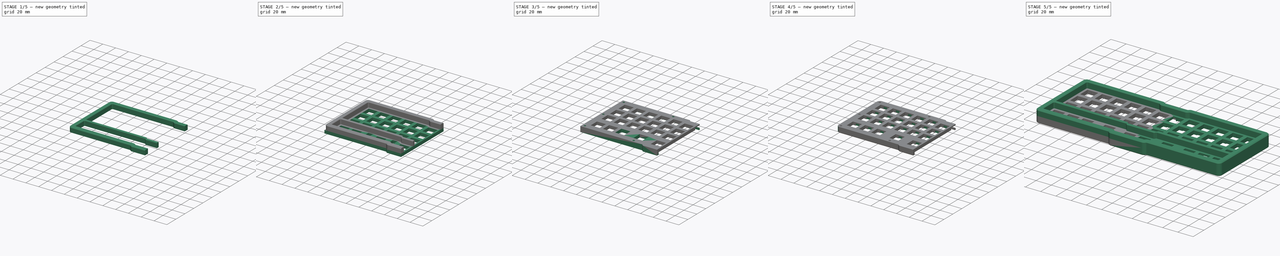
[diagram: build sequence overview — one tinted view per stage of 5, left to right]
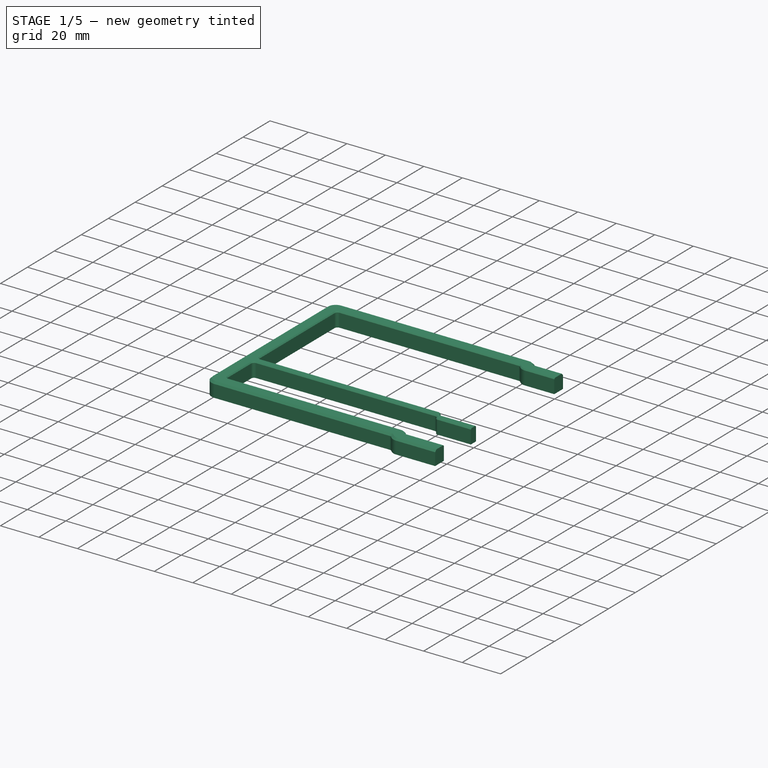
[diagram: stage 1 of 5 — iso view after this stage's code; geometry added in this stage tinted green]
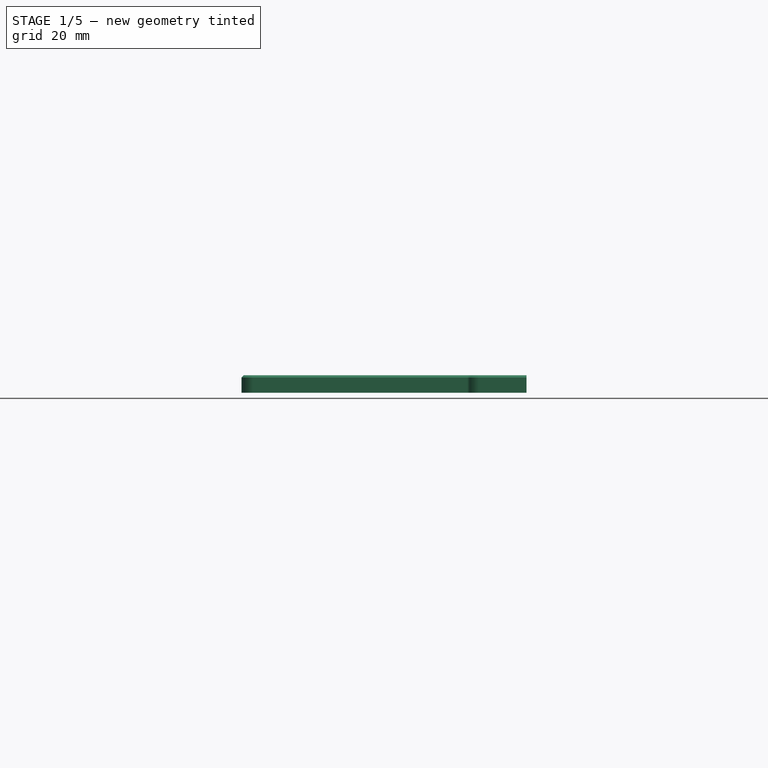
[diagram: stage 1 of 5 — front view after this stage's code; geometry added in this stage tinted green]
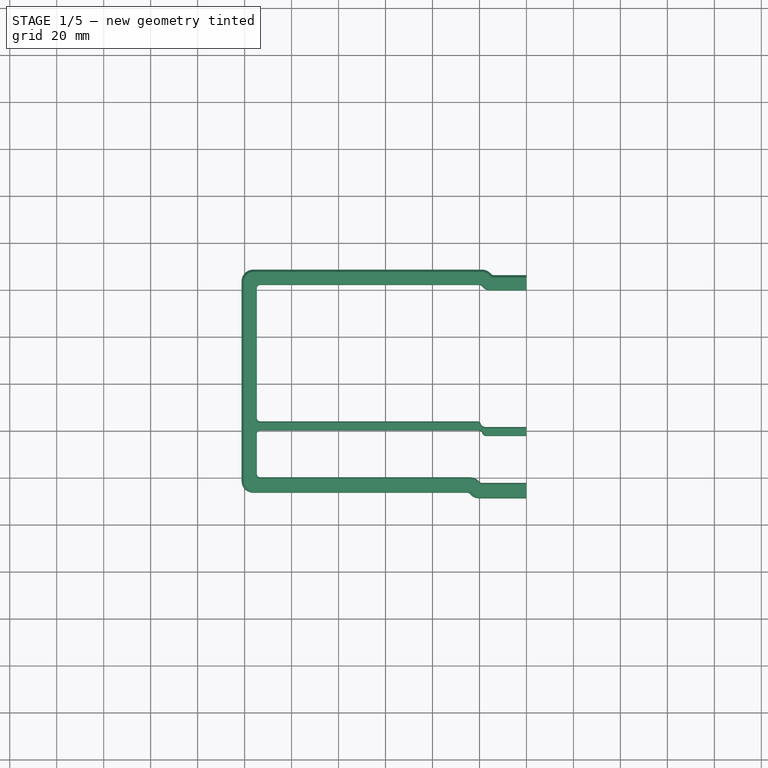
[diagram: stage 1 of 5 — top view after this stage's code; geometry added in this stage tinted green]
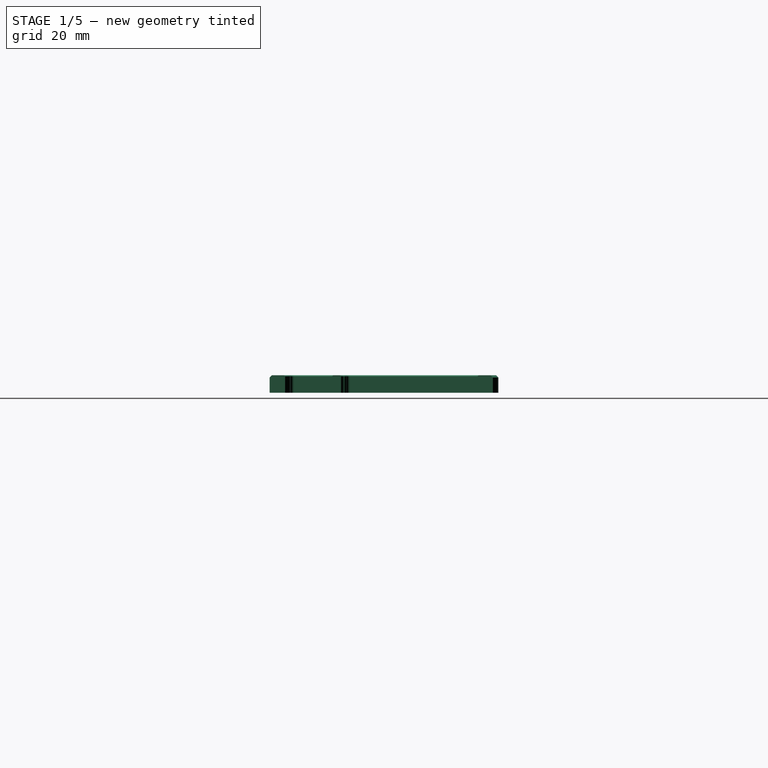
[diagram: stage 1 of 5 — right view after this stage's code; geometry added in this stage tinted green]
FCSTD DOCUMENT  (FreeCAD 0.20R29603 (Git))
Label: case_kongMX
License: All rights reserved
LicenseURL: http://en.wikipedia.org/wiki/All_rights_reserved
objects: Sketcher::SketchObject×16, PartDesign::Pocket×12, PartDesign::Fillet×6, PartDesign::Pad×4, App::MaterialObjectPython×4, PartDesign::Chamfer×3, PartDesign::Body×3, Part::Mirroring×2, Part::MultiFuse×2, Spreadsheet::Sheet×1, App::DocumentObjectGroupPython×1, PartDesign::ShapeBinder×1, PartDesign::FeatureBase×1
note: 75 computed .brp shape members not serialized (recipe doc carries the construction recipe); baked Part::Feature solids carry a one-line shape summary decoded from their .brp

FEATURE [Sketcher::SketchObject] Sketch060
  FullyConstrained = false
  MapMode = 5
  Support = -> [XY_Plane814]
  expr: Constraints[14] = <<vals_Case>>.spacing + 2 * <<vals_Case>>.keysafety
  expr: Constraints[15] = <<vals_Case>>.spaceOffset - 2 * <<vals_Case>>.keysafety
  expr: Constraints[37] = <<vals_Case>>.wallThickness - <<vals_Case>>.keysafety
  expr: Constraints[40] = <<vals_Case>>.wallThickness - <<vals_Case>>.keysafety
  expr: Constraints[41] = <<vals_Case>>.caseHeight / 2
  expr: Constraints[42] = 3 * <<vals_Case>>.spacing + 2 * <<vals_Case>>.keysafety
  expr: Constraints[45] = <<vals_Case>>.midOffset
  expr: Constraints[4] = <<vals_Case>>.caseWidth / 2
  expr: Constraints[55] = <<vals_Case>>.wallThickness - <<vals_Case>>.keysafety
  expr: Constraints[56] = <<vals_Case>>.caseHeight / 2
  expr: Constraints[58] = <<vals_Case>>.spacing + <<vals_Case>>.keysafety
  expr: Constraints[5] = <<vals_Case>>.caseHeight - <<vals_Case>>.midOffset
  expr: Constraints[61] = <<vals_Case>>.spacing + <<vals_Case>>.keysafety
  expr: Constraints[6] = <<vals_Case>>.wallThickness - <<vals_Case>>.keysafety
  expr: Constraints[72] = <<vals_Case>>.spaceOffset - 2 * <<vals_Case>>.keysafety
  expr: Constraints[73] = <<vals_Case>>.midOffset
  expr: Constraints[76] = <<vals_Case>>.spacing + <<vals_Case>>.keysafety
  expr: Constraints[79] = <<vals_Case>>.spacing - <<vals_Case>>.keysafety
  expr: Constraints[7] = <<vals_Case>>.wallThickness - <<vals_Case>>.keysafety
  sketch-geometry (28):
    g0: LineSegment StartX=-121.3 StartY=48.6719 StartZ=0 EndX=-121.3 EndY=-46.2906 EndZ=0
    g1: LineSegment StartX=0 StartY=-48.6719 StartZ=0 EndX=0 EndY=-42.1719 EndZ=0
    g2: LineSegment StartX=0 StartY=39.7906 StartZ=0 EndX=0 EndY=46.2906 EndZ=0
    g3: LineSegment StartX=-114.8 StartY=42.1719 StartZ=0 EndX=-114.8 EndY=-15.9781 EndZ=0
    g4: LineSegment StartX=-114.8 StartY=-15.9781 StartZ=0 EndX=-19.55 EndY=-15.9781 EndZ=0
    g5: LineSegment StartX=-18.9376 StartY=-19.7406 StartZ=0 EndX=-114.8 EndY=-19.7406 EndZ=0
    g6: LineSegment StartX=-114.8 StartY=-19.7406 StartZ=0 EndX=-114.8 EndY=-39.7906 EndZ=0
    g7: LineSegment StartX=-114.8 StartY=42.1719 StartZ=0 EndX=-19.55 EndY=42.1719 EndZ=0
    g8: LineSegment StartX=0 StartY=39.7906 StartZ=0 EndX=-17.1687 EndY=39.7906 EndZ=0
    g9: LineSegment StartX=0 StartY=46.2906 StartZ=0 EndX=-14.4764 EndY=46.2906 EndZ=0
    g10: LineSegment StartX=-14.4764 StartY=46.2906 StartZ=0 EndX=-16.8576 EndY=48.6719 EndZ=0
    g11: LineSegment StartX=-16.8576 StartY=48.6719 StartZ=0 EndX=-121.3 EndY=48.6719 EndZ=0
    g12: LineSegment StartX=0 StartY=-48.6719 StartZ=0 EndX=-22.2424 EndY=-48.6719 EndZ=0
    g13: LineSegment StartX=-24.6236 StartY=-46.2906 StartZ=0 EndX=-22.2424 EndY=-48.6719 EndZ=0
    g14: LineSegment StartX=-24.6236 StartY=-46.2906 StartZ=0 EndX=-121.3 EndY=-46.2906 EndZ=0
    g15: LineSegment StartX=-114.8 StartY=-39.7906 StartZ=0 EndX=-21.9312 EndY=-39.7906 EndZ=0
    g16: LineSegment StartX=-19.55 StartY=-42.1719 StartZ=0 EndX=0 EndY=-42.1719 EndZ=0
    g17: LineSegment StartX=-17.1687 StartY=39.7906 StartZ=0 EndX=-19.55 EndY=42.1719 EndZ=0
    g18: LineSegment StartX=-13.7632 StartY=45.5774 StartZ=0 EndX=-18.3594 EndY=40.9812 EndZ=0
    g19: LineSegment StartX=-19.55 StartY=-42.1719 StartZ=0 EndX=-21.9312 EndY=-39.7906 EndZ=0
    g20: LineSegment StartX=-20.7406 StartY=-40.9812 StartZ=0 EndX=-25.3368 EndY=-45.5774 EndZ=0
    g21: LineSegment StartX=-19.55 StartY=-15.9781 StartZ=0 EndX=-19.1624 EndY=-18.3594 EndZ=0
    g22: LineSegment StartX=-19.1624 StartY=-18.3594 StartZ=0 EndX=0 EndY=-18.3594 EndZ=0
    g23: LineSegment StartX=0 StartY=-18.3594 StartZ=0 EndX=0 EndY=-22.1219 EndZ=0
    g24: LineSegment StartX=0 StartY=-22.1219 StartZ=0 EndX=-18.55 EndY=-22.1219 EndZ=0
    g25: LineSegment StartX=-18.55 StartY=-22.1219 StartZ=0 EndX=-18.9376 EndY=-19.7406 EndZ=0
    g26: LineSegment StartX=0 StartY=-12.2802 StartZ=0 EndX=-19.55 EndY=-12.2802 EndZ=0
    g27: LineSegment StartX=0 StartY=-13.3053 StartZ=0 EndX=-18.55 EndY=-13.3053 EndZ=0
  constraints (83):
    c: PointOnObject(g2,g-2)
    c: PointOnObject(g1,g-2)
    c: PointOnObject(g1,g-2)
    c: PointOnObject(g2,g-2)
    c: DistanceX(g0,g2) = 121.3
    c: DistanceY(g0,g0) = 94.9625
    c: DistanceX(g0,g3) = 6.5
    c: DistanceY(g3,g0) = 6.5
    c: Vertical(g3)
    c: Coincident(g3,g4)
    c: Horizontal(g4)
    c: Horizontal(g5)
    c: Coincident(g5,g6)
    c: Vertical(g6)
    c: DistanceY(g6,g6) = 20.05
    c: DistanceY(g5,g4) = 3.7625
    c: Coincident(g7,g3)
    c: Horizontal(g7)
    c: Horizontal(g8)
    c: Coincident(g2,g8)
    c: Coincident(g2,g9)
    c: Horizontal(g9)
    c: Coincident(g9,g10)
    c: Coincident(g10,g11)
    c: Coincident(g11,g0)
    c: Horizontal(g11)
    c: Coincident(g12,g1)
    c: Horizontal(g12)
    c: Coincident(g13,g12)
    c: Coincident(g14,g13)
    c: Coincident(g14,g0)
    c: Coincident(g15,g6)
    c: Coincident(g16,g1)
    c: Horizontal(g16)
    c: Coincident(g17,g8)
    c: Coincident(g17,g7)
    c: Parallel(g17,g10)
    c: DistanceY(g2,g2) = 6.5
    c: PointOnObject(g18,g10)
    c: Perpendicular(g10,g18)
    c: Distance(g18) = 6.5
    c: DistanceY(g-1,g0) = 48.6719
    c: DistanceY(g3,g3) = 58.15
    c: Vertical(g5,g3)
    c: Horizontal(g15)
    c: DistanceY(g9,g10) = 2.38125
    c: Horizontal(g14)
    c: Angle(g-2,g13) = 0.785398
    c: Parallel(g17,g13)
    c: Coincident(g19,g16)
    c: Coincident(g19,g15)
    c: Parallel(g19,g13)
    c: PointOnObject(g20,g13)
    c: Perpendicular(g20,g13)
    c: Equal(g20,g18)
    c: DistanceY(g1,g1) = 6.5
    c: DistanceY(g1,g-1) = 48.6719
    c: Vertical(g0)
    c: DistanceX(g16,g-1) = 19.55
    c: Symmetric(g19,g19,g20)
    c: Symmetric(g17,g17,g18)
    c: DistanceX(g7,g-1) = 19.55
    c: Coincident(g4,g21)
    c: Coincident(g21,g22)
    c: PointOnObject(g22,g-2)
    c: Horizontal(g22)
    c: Coincident(g22,g23)
    c: PointOnObject(g23,g-2)
    c: Coincident(g23,g24)
    c: Horizontal(g24)
    c: Coincident(g24,g25)
    c: Coincident(g25,g5)
    c: DistanceY(g23,g23) = 3.7625
    c: DistanceY(g21,g4) = 2.38125
    c: PointOnObject(g26,g-2)
    c: Horizontal(g26)
    c: DistanceX(g26,g26) = 19.55
    c: PointOnObject(g27,g-2)
    c: Horizontal(g27)
    c: DistanceX(g27,g27) = 18.55
    c: Vertical(g24,g27)
    c: Tangent(g21,g25)
    c: Vertical(g4,g26)
FEATURE [PartDesign::Pad] Pad022
  Direction = (0,0,1)
  Length = 7.5
  Length2 = 10
  Profile = -> Sketch060
  ReferenceAxis = -> Sketch060 [N_Axis]
  Type = 0
  expr: Length = <<vals_Case>>.heightAbovePlate
FEATURE [PartDesign::Fillet] Fillet010
  Base = -> Pad022 [Edge14,Edge20,Edge11,Edge8,Edge32,Edge68]
  BaseFeature = -> Pad022
  Radius = 5
  SupportTransform = false
  UseAllEdges = false
  expr: Radius = <<vals_Case>>.edgeradius
FEATURE [PartDesign::Fillet] Fillet011
  Base = -> Fillet010 [Edge76,Edge3,Edge78,Edge86,Edge83,Edge73,Edge72,Edge74,Edge89,Edge90]
  BaseFeature = -> Fillet010
  Radius = 1.5
  SupportTransform = false
  UseAllEdges = false
  expr: Radius = <<vals_Case>>.innerEdgeRadius
FEATURE [PartDesign::Fillet] Fillet012
  Base = -> Fillet011 [Edge119,Edge109]
  BaseFeature = -> Fillet011
  Radius = 2
  SupportTransform = false
  UseAllEdges = false
FEATURE [PartDesign::Chamfer] Chamfer007
  Angle = 45
  Base = -> Fillet012 [Edge119]
  BaseFeature = -> Fillet012
  ChamferType = 0
  FlipDirection = false
  Size = 1
  Size2 = 1
  SupportTransform = false
  UseAllEdges = false
FEATURE [PartDesign::Chamfer] Chamfer008
  Angle = 45
  Base = -> Chamfer007 [Edge81,Edge61]
  BaseFeature = -> Chamfer007
  ChamferType = 0
  FlipDirection = false
  Size = 0.5
  Size2 = 1
  SupportTransform = false
  UseAllEdges = false
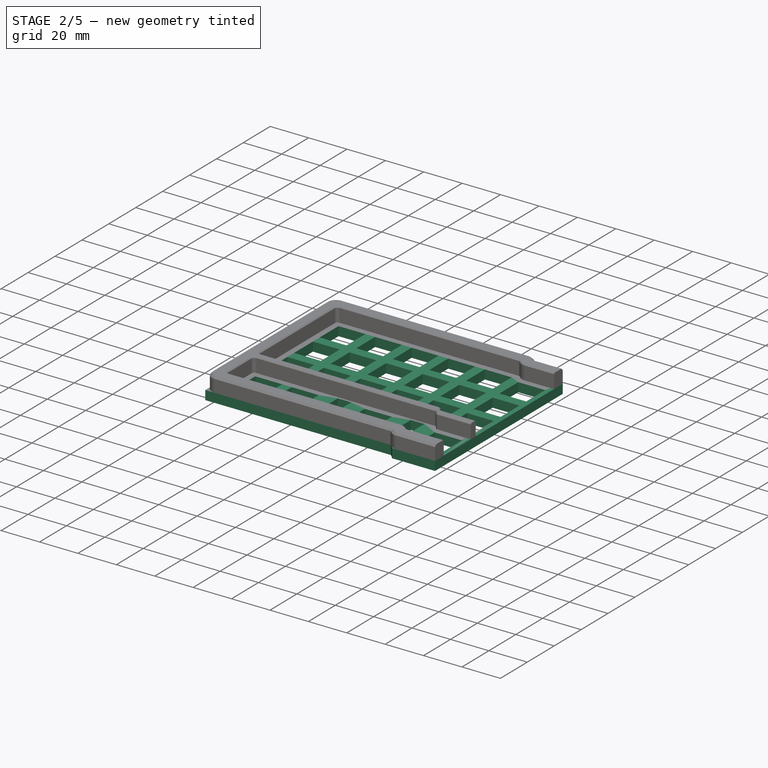
[diagram: stage 2 of 5 — iso view after this stage's code; geometry added in this stage tinted green]
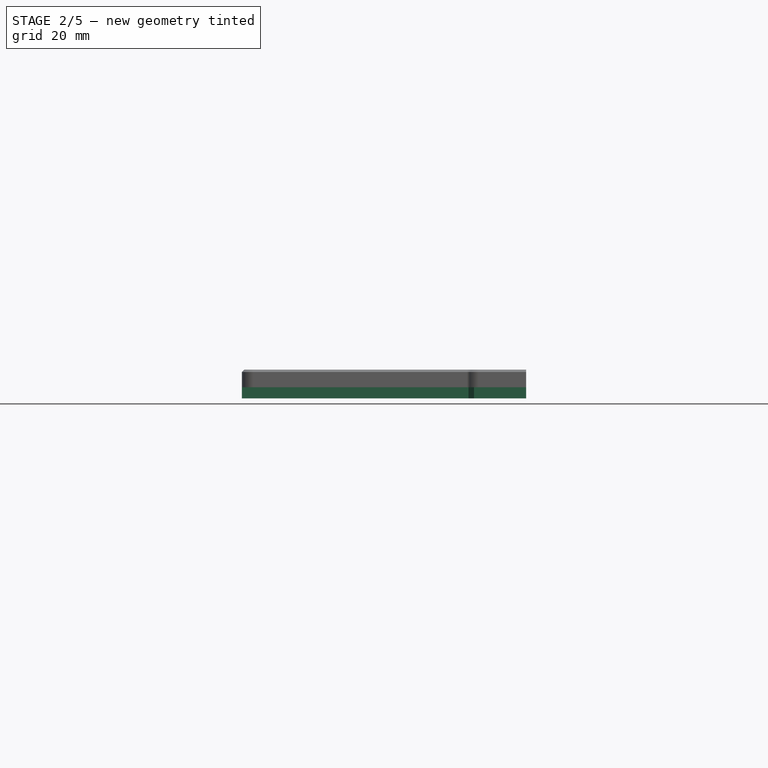
[diagram: stage 2 of 5 — front view after this stage's code; geometry added in this stage tinted green]
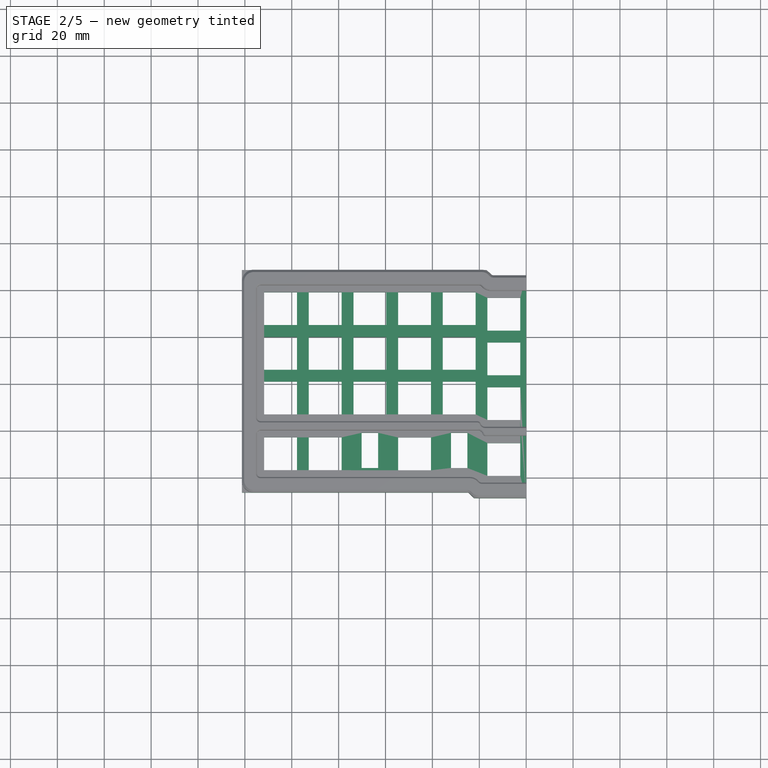
[diagram: stage 2 of 5 — top view after this stage's code; geometry added in this stage tinted green]
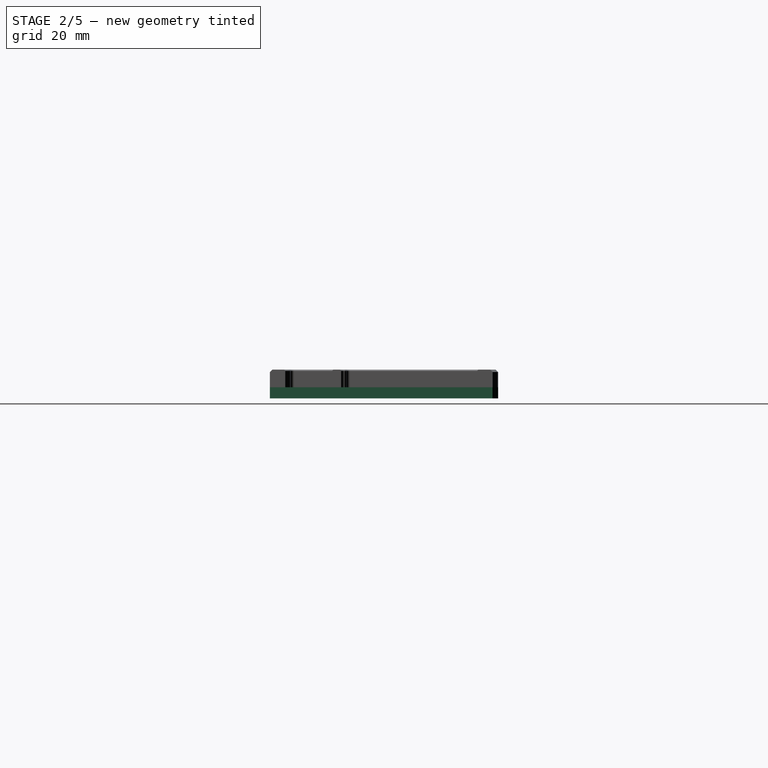
[diagram: stage 2 of 5 — right view after this stage's code; geometry added in this stage tinted green]
FEATURE [Spreadsheet::Sheet] Spreadsheet  label="vals_Case"
  cells = A2=Dimensions; D2=Ornament; A3=spacing; B3(spacing)=19.05; D3=spaceOffset; E3(spaceOffset)==0.25 * spacing; A4=WallThickness; B4(wallThickness)=7; D4=spaceOffsetWidth; E4(spaceoffsetu)=6; A5=WallThickness; B5(LWallThickness)==wallThickness / 2; D5=minWidth; E5==spaceOffset - 2 * keysafety; A6=Edgeradius; B6(edgeradius)=5; A7=innerEdgeRadius; B7(innerEdgeRadius)==edgeradius - LWallThickness; A8=keysafety; B8(keysafety)=0.5; A9=heightAbovePlate; B9(heightAbovePlate)=7.5; A10=midOffset; B10(midOffset)==0.125 * spacing; A11=caseHeight; B11(caseHeight)==4.25 * spacing + 2 * wallThickness + midOffset; A12=caseWidth; B12(caseWidth)==spacing * 12 + 2 * wallThickness + caseHandOffset; G12=plateholes; H12(plateHoleRadius)=1.75; A13=caseHandOffset; B13(caseHandOffset)=0; G13=plateHoleExtra; H13(plateHoleExtra)=1; G14=plateTopOffset; G15=plateBottomOffset; G16=plateThicknes; H16(plateThickness)=1.5; G17=plateHeight; H17(plateHeight)==5 - platetoPCB; G18=platetoPCB; H18(platetoPCB)=0.25; A19=magOuterRad; B19(magOuterRad)=2.55; A20=magRad; B20(magRad)=1.55; G20=pcbThickness; H20(pcbThickness)=1; A21=magOuterOffset; B21(magOuterOffset)=1; G21=hsHeight; H21(hsHeight)=1.85; G22=hsSafety; H22(hsSafety)=0.5
FEATURE [Sketcher::SketchObject] Sketch036
  FullyConstrained = true
  MapMode = 5
  Support = -> [XY_Plane209]
  expr: Constraints[7] = <<vals_Case>>.caseHeight
  expr: Constraints[8] = <<vals_Case>>.caseWidth / 2
  sketch-geometry (4):
    g0: LineSegment StartX=-121.3 StartY=48.6719 StartZ=0 EndX=0 EndY=48.6719 EndZ=0
    g1: LineSegment StartX=0 StartY=48.6719 StartZ=0 EndX=0 EndY=-48.6719 EndZ=0
    g2: LineSegment StartX=0 StartY=-48.6719 StartZ=0 EndX=-121.3 EndY=-48.6719 EndZ=0
    g3: LineSegment StartX=-121.3 StartY=-48.6719 StartZ=0 EndX=-121.3 EndY=48.6719 EndZ=0
  constraints (11):
    c: Coincident(g0,g1)
    c: Coincident(g1,g2)
    c: Coincident(g2,g3)
    c: Coincident(g3,g0)
    c: Horizontal(g0)
    c: Horizontal(g2)
    c: Vertical(g3)
    c: DistanceY(g1,g1) = 97.3438
    c: DistanceX(g0,g0) = 121.3
    c: PointOnObject(g0,g-2)
    c: Symmetric(g0,g1,g-1)
FEATURE [PartDesign::Pad] Pad015  label="main shape"
  Direction = (0,0,1)
  Length = 4.75
  Length2 = 10
  Profile = -> Sketch036
  ReferenceAxis = -> Sketch036 [N_Axis]
  Reversed = true
  Type = 0
  expr: Length = <<vals_Case>>.plateHeight
FEATURE [Sketcher::SketchObject] Sketch037
  FullyConstrained = true
  MapMode = 5
  Support = -> [XY_Plane209]
  expr: Constraints[157] = <<vals_Case>>.spacing
  expr: Constraints[158] = <<vals_Case>>.spacing
  expr: Constraints[159] = <<vals_Case>>.spacing
  expr: Constraints[160] = <<vals_Case>>.spacing
  expr: Constraints[161] = <<vals_Case>>.spacing
  expr: Constraints[162] = <<vals_Case>>.spacing
  expr: Constraints[164] = <<vals_Case>>.caseHandOffset / 2 + 0.5 * <<vals_Case>>.spacing
  expr: Constraints[212] = <<vals_Case>>.spacing
  expr: Constraints[213] = <<vals_Case>>.caseHeight / 2 - <<vals_Case>>.wallThickness - 2.5
  expr: Constraints[214] = <<vals_Case>>.spacing
  expr: Constraints[215] = <<vals_Case>>.spacing
  expr: Constraints[216] = <<vals_Case>>.midOffset
  expr: Constraints[240] = <<vals_Case>>.spacing * 1.25
  sketch-geometry (81):
    g0: LineSegment StartX=-16.525 StartY=36.7906 StartZ=0 EndX=-2.525 EndY=36.7906 EndZ=0
    g1: LineSegment StartX=-2.525 StartY=36.7906 StartZ=0 EndX=-2.525 EndY=22.7906 EndZ=0
    g2: LineSegment StartX=-2.525 StartY=22.7906 StartZ=0 EndX=-16.525 EndY=22.7906 EndZ=0
    g3: LineSegment StartX=-16.525 StartY=22.7906 StartZ=0 EndX=-16.525 EndY=36.7906 EndZ=0
    g4: LineSegment StartX=-35.575 StartY=39.1719 StartZ=0 EndX=-21.575 EndY=39.1719 EndZ=0
    g5: LineSegment StartX=-21.575 StartY=39.1719 StartZ=0 EndX=-21.575 EndY=25.1719 EndZ=0
    g6: LineSegment StartX=-21.575 StartY=25.1719 StartZ=0 EndX=-35.575 EndY=25.1719 EndZ=0
    g7: LineSegment StartX=-35.575 StartY=25.1719 StartZ=0 EndX=-35.575 EndY=39.1719 EndZ=0
    g8: LineSegment StartX=-54.625 StartY=39.1719 StartZ=0 EndX=-40.625 EndY=39.1719 EndZ=0
    g9: LineSegment StartX=-40.625 StartY=39.1719 StartZ=0 EndX=-40.625 EndY=25.1719 EndZ=0
    g10: LineSegment StartX=-40.625 StartY=25.1719 StartZ=0 EndX=-54.625 EndY=25.1719 EndZ=0
    g11: LineSegment StartX=-54.625 StartY=25.1719 StartZ=0 EndX=-54.625 EndY=39.1719 EndZ=0
    g12: LineSegment StartX=-73.675 StartY=39.1719 StartZ=0 EndX=-59.675 EndY=39.1719 EndZ=0
    g13: LineSegment StartX=-59.675 StartY=39.1719 StartZ=0 EndX=-59.675 EndY=25.1719 EndZ=0
    g14: LineSegment StartX=-59.675 StartY=25.1719 StartZ=0 EndX=-73.675 EndY=25.1719 EndZ=0
    g15: LineSegment StartX=-73.675 StartY=25.1719 StartZ=0 EndX=-73.675 EndY=39.1719 EndZ=0
    g16: LineSegment StartX=-92.725 StartY=39.1719 StartZ=0 EndX=-78.725 EndY=39.1719 EndZ=0
    g17: LineSegment StartX=-78.725 StartY=39.1719 StartZ=0 EndX=-78.725 EndY=25.1719 EndZ=0
    g18: LineSegment StartX=-78.725 StartY=25.1719 StartZ=0 EndX=-92.725 EndY=25.1719 EndZ=0
    g19: LineSegment StartX=-92.725 StartY=25.1719 StartZ=0 EndX=-92.725 EndY=39.1719 EndZ=0
    g20: LineSegment StartX=-92.725 StartY=20.1219 StartZ=0 EndX=-78.725 EndY=20.1219 EndZ=0
    g21: LineSegment StartX=-78.725 StartY=20.1219 StartZ=0 EndX=-78.725 EndY=6.12187 EndZ=0
    g22: LineSegment StartX=-78.725 StartY=6.12187 StartZ=0 EndX=-92.725 EndY=6.12187 EndZ=0
    g23: LineSegment StartX=-92.725 StartY=6.12187 StartZ=0 EndX=-92.725 EndY=20.1219 EndZ=0
    g24: LineSegment StartX=-73.675 StartY=20.1219 StartZ=0 EndX=-59.675 EndY=20.1219 EndZ=0
    g25: LineSegment StartX=-59.675 StartY=20.1219 StartZ=0 EndX=-59.675 EndY=6.12188 EndZ=0
    g26: LineSegment StartX=-59.675 StartY=6.12188 StartZ=0 EndX=-73.675 EndY=6.12188 EndZ=0
    g27: LineSegment StartX=-73.675 StartY=6.12188 StartZ=0 EndX=-73.675 EndY=20.1219 EndZ=0
    g28: LineSegment StartX=-16.525 StartY=17.7406 StartZ=0 EndX=-2.525 EndY=17.7406 EndZ=0
    g29: LineSegment StartX=-2.525 StartY=17.7406 StartZ=0 EndX=-2.525 EndY=3.74063 EndZ=0
    g30: LineSegment StartX=-2.525 StartY=3.74063 StartZ=0 EndX=-16.525 EndY=3.74063 EndZ=0
    g31: LineSegment StartX=-16.525 StartY=3.74063 StartZ=0 EndX=-16.525 EndY=17.7406 EndZ=0
    g32: LineSegment StartX=-54.625 StartY=20.1219 StartZ=0 EndX=-40.625 EndY=20.1219 EndZ=0
    g33: LineSegment StartX=-40.625 StartY=20.1219 StartZ=0 EndX=-40.625 EndY=6.12188 EndZ=0
    g34: LineSegment StartX=-40.625 StartY=6.12188 StartZ=0 EndX=-54.625 EndY=6.12188 EndZ=0
    g35: LineSegment StartX=-54.625 StartY=6.12188 StartZ=0 EndX=-54.625 EndY=20.1219 EndZ=0
    g36: LineSegment StartX=-35.575 StartY=20.1219 StartZ=0 EndX=-21.575 EndY=20.1219 EndZ=0
    g37: LineSegment StartX=-21.575 StartY=20.1219 StartZ=0 EndX=-21.575 EndY=6.12188 EndZ=0
    g38: LineSegment StartX=-21.575 StartY=6.12188 StartZ=0 EndX=-35.575 EndY=6.12188 EndZ=0
    g39: LineSegment StartX=-35.575 StartY=6.12188 StartZ=0 EndX=-35.575 EndY=20.1219 EndZ=0
    g40: LineSegment StartX=-16.525 StartY=-1.30938 StartZ=0 EndX=-2.525 EndY=-1.30938 EndZ=0
    g41: LineSegment StartX=-2.525 StartY=-1.30938 StartZ=0 EndX=-2.525 EndY=-15.3094 EndZ=0
    g42: LineSegment StartX=-2.525 StartY=-15.3094 StartZ=0 EndX=-16.525 EndY=-15.3094 EndZ=0
    g43: LineSegment StartX=-16.525 StartY=-15.3094 StartZ=0 EndX=-16.525 EndY=-1.30938 EndZ=0
    g44: LineSegment StartX=-35.575 StartY=1.07187 StartZ=0 EndX=-21.575 EndY=1.07187 EndZ=0
    g45: LineSegment StartX=-21.575 StartY=1.07187 StartZ=0 EndX=-21.575 EndY=-12.9281 EndZ=0
    g46: LineSegment StartX=-21.575 StartY=-12.9281 StartZ=0 EndX=-35.575 EndY=-12.9281 EndZ=0
    g47: LineSegment StartX=-35.575 StartY=-12.9281 StartZ=0 EndX=-35.575 EndY=1.07187 EndZ=0
    g48: LineSegment StartX=-54.625 StartY=1.07187 StartZ=0 EndX=-40.625 EndY=1.07187 EndZ=0
    g49: LineSegment StartX=-40.625 StartY=1.07187 StartZ=0 EndX=-40.625 EndY=-12.9281 EndZ=0
    g50: LineSegment StartX=-40.625 StartY=-12.9281 StartZ=0 EndX=-54.625 EndY=-12.9281 EndZ=0
    g51: LineSegment StartX=-54.625 StartY=-12.9281 StartZ=0 EndX=-54.625 EndY=1.07187 EndZ=0
    g52: LineSegment StartX=-73.675 StartY=1.07187 StartZ=0 EndX=-59.675 EndY=1.07187 EndZ=0
    g53: LineSegment StartX=-59.675 StartY=1.07187 StartZ=0 EndX=-59.675 EndY=-12.9281 EndZ=0
    g54: LineSegment StartX=-59.675 StartY=-12.9281 StartZ=0 EndX=-73.675 EndY=-12.9281 EndZ=0
    g55: LineSegment StartX=-73.675 StartY=-12.9281 StartZ=0 EndX=-73.675 EndY=1.07187 EndZ=0
    g56: GeomPoint X=-9.525 Y=36.7906 Z=0
    g57: LineSegment StartX=-92.725 StartY=1.07187 StartZ=0 EndX=-78.725 EndY=1.07187 EndZ=0
    g58: LineSegment StartX=-78.725 StartY=1.07187 StartZ=0 EndX=-78.725 EndY=-12.9281 EndZ=0
    g59: LineSegment StartX=-78.725 StartY=-12.9281 StartZ=0 EndX=-92.725 EndY=-12.9281 EndZ=0
    g60: LineSegment StartX=-92.725 StartY=-12.9281 StartZ=0 EndX=-92.725 EndY=1.07187 EndZ=0
    g61: LineSegment StartX=-111.775 StartY=39.1719 StartZ=0 EndX=-97.775 EndY=39.1719 EndZ=0
    g62: LineSegment StartX=-97.775 StartY=39.1719 StartZ=0 EndX=-97.775 EndY=25.1719 EndZ=0
    g63: LineSegment StartX=-97.775 StartY=25.1719 StartZ=0 EndX=-111.775 EndY=25.1719 EndZ=0
    g64: LineSegment StartX=-111.775 StartY=25.1719 StartZ=0 EndX=-111.775 EndY=39.1719 EndZ=0
    g65: LineSegment StartX=-111.775 StartY=20.1219 StartZ=0 EndX=-97.775 EndY=20.1219 EndZ=0
    g66: LineSegment StartX=-97.775 StartY=20.1219 StartZ=0 EndX=-97.775 EndY=6.12188 EndZ=0
    g67: LineSegment StartX=-97.775 StartY=6.12188 StartZ=0 EndX=-111.775 EndY=6.12188 EndZ=0
    g68: LineSegment StartX=-111.775 StartY=6.12188 StartZ=0 EndX=-111.775 EndY=20.1219 EndZ=0
    g69: LineSegment StartX=-111.775 StartY=1.07187 StartZ=0 EndX=-97.775 EndY=1.07187 EndZ=0
    g70: LineSegment StartX=-97.775 StartY=1.07187 StartZ=0 EndX=-97.775 EndY=-12.9281 EndZ=0
    g71: LineSegment StartX=-97.775 StartY=-12.9281 StartZ=0 EndX=-111.775 EndY=-12.9281 EndZ=0
    g72: LineSegment StartX=-111.775 StartY=-12.9281 StartZ=0 EndX=-111.775 EndY=1.07187 EndZ=0
    g73: LineSegment StartX=-111.775 StartY=-22.7406 StartZ=0 EndX=-97.775 EndY=-22.7406 EndZ=0
    g74: LineSegment StartX=-97.775 StartY=-22.7406 StartZ=0 EndX=-97.775 EndY=-36.7406 EndZ=0
    g75: LineSegment StartX=-97.775 StartY=-36.7406 StartZ=0 EndX=-111.775 EndY=-36.7406 EndZ=0
    g76: LineSegment StartX=-111.775 StartY=-36.7406 StartZ=0 EndX=-111.775 EndY=-22.7406 EndZ=0
    g77: LineSegment StartX=-92.725 StartY=-22.7406 StartZ=0 EndX=-78.725 EndY=-22.7406 EndZ=0
    g78: LineSegment StartX=-78.725 StartY=-22.7406 StartZ=0 EndX=-78.725 EndY=-36.7406 EndZ=0
    g79: LineSegment StartX=-78.725 StartY=-36.7406 StartZ=0 EndX=-92.725 EndY=-36.7406 EndZ=0
    g80: LineSegment StartX=-92.725 StartY=-36.7406 StartZ=0 EndX=-92.725 EndY=-22.7406 EndZ=0
  constraints (241):
    c: Coincident(g0,g1)
    c: Coincident(g1,g2)
    c: Coincident(g2,g3)
    c: Coincident(g3,g0)
    c: Horizontal(g0)
    c: Horizontal(g2)
    c: Vertical(g1)
    c: Vertical(g3)
    c: Coincident(g4,g5)
    c: Coincident(g5,g6)
    c: Coincident(g6,g7)
    c: Coincident(g7,g4)
    c: Horizontal(g4)
    c: Horizontal(g6)
    c: Vertical(g5)
    c: Vertical(g7)
    c: Coincident(g8,g9)
    c: Coincident(g9,g10)
    c: Coincident(g10,g11)
    c: Coincident(g11,g8)
    c: Horizontal(g8)
    c: Horizontal(g10)
    c: Vertical(g9)
    c: Vertical(g11)
    c: Coincident(g12,g13)
    c: Coincident(g13,g14)
    c: Coincident(g14,g15)
    c: Coincident(g15,g12)
    c: Horizontal(g12)
    c: Horizontal(g14)
    c: Vertical(g13)
    c: Vertical(g15)
    c: Coincident(g16,g17)
    c: Coincident(g17,g18)
    c: Coincident(g18,g19)
    c: Coincident(g19,g16)
    c: Horizontal(g16)
    c: Horizontal(g18)
    c: Vertical(g17)
    c: Vertical(g19)
    c: Coincident(g20,g21)
    c: Coincident(g21,g22)
    c: Coincident(g22,g23)
    c: Coincident(g23,g20)
    c: Horizontal(g20)
    c: Horizontal(g22)
    c: Vertical(g21)
    c: Vertical(g23)
    c: Coincident(g24,g25)
    c: Coincident(g25,g26)
    c: Coincident(g26,g27)
    c: Coincident(g27,g24)
    c: Horizontal(g24)
    c: Horizontal(g26)
    c: Vertical(g25)
    c: Vertical(g27)
    c: Coincident(g28,g29)
    c: Coincident(g29,g30)
    c: Coincident(g30,g31)
    c: Coincident(g31,g28)
    c: Horizontal(g28)
    c: Horizontal(g30)
    c: Vertical(g29)
    c: Vertical(g31)
    c: Coincident(g32,g33)
    c: Coincident(g33,g34)
    c: Coincident(g34,g35)
    c: Coincident(g35,g32)
    c: Horizontal(g32)
    c: Horizontal(g34)
    c: Vertical(g33)
    c: Vertical(g35)
    c: Coincident(g36,g37)
    c: Coincident(g37,g38)
    c: Coincident(g38,g39)
    c: Coincident(g39,g36)
    c: Horizontal(g36)
    c: Horizontal(g38)
    c: Vertical(g37)
    c: Vertical(g39)
    c: Coincident(g40,g41)
    c: Coincident(g41,g42)
    c: Coincident(g42,g43)
    c: Coincident(g43,g40)
    c: Horizontal(g40)
    c: Horizontal(g42)
    c: Vertical(g41)
    c: Vertical(g43)
    c: Coincident(g44,g45)
    c: Coincident(g45,g46)
    c: Coincident(g46,g47)
    c: Coincident(g47,g44)
    c: Horizontal(g44)
    c: Horizontal(g46)
    c: Vertical(g45)
    c: Vertical(g47)
    c: Coincident(g48,g49)
    c: Coincident(g49,g50)
    c: Coincident(g50,g51)
    c: Coincident(g51,g48)
    c: Horizontal(g48)
    c: Horizontal(g50)
    c: Vertical(g49)
    c: Vertical(g51)
    c: Coincident(g52,g53)
    c: Coincident(g53,g54)
    c: Coincident(g54,g55)
    c: Coincident(g55,g52)
    c: Horizontal(g52)
    c: Horizontal(g54)
    c: Vertical(g53)
    c: Vertical(g55)
    c: Equal(g20,g23)
    c: Equal(g23,g19)
    c: Equal(g19,g16)
    c: Equal(g16,g15)
    c: Equal(g15,g12)
    c: Equal(g12,g11)
    c: Equal(g11,g8)
    c: Equal(g8,g7)
    c: Equal(g7,g4)
    c: Equal(g4,g3)
    c: Equal(g3,g0)
    c: Equal(g0,g39)
    c: Equal(g39,g36)
    c: Equal(g36,g35)
    c: Equal(g35,g32)
    c: Equal(g32,g31)
    c: Equal(g31,g28)
    c: Equal(g28,g27)
    c: Equal(g27,g24)
    c: Equal(g24,g55)
    c: Equal(g55,g52)
    c: Equal(g52,g51)
    c: Equal(g51,g48)
    c: Equal(g48,g47)
    c: Equal(g47,g44)
    c: Equal(g44,g43)
    c: Equal(g43,g40)
    c: DistanceX(g0,g0) = 14
    c: Horizontal(g16,g12)
    c: Horizontal(g12,g8)
    c: Horizontal(g8,g4)
    c: Horizontal(g36,g32)
    c: Horizontal(g32,g24)
    c: Horizontal(g24,g20)
    c: Horizontal(g52,g48)
    c: Horizontal(g48,g44)
    c: Vertical(g52,g24)
    c: Vertical(g24,g12)
    c: Vertical(g20,g16)
    c: Vertical(g48,g32)
    c: Vertical(g32,g8)
    c: Vertical(g4,g36)
    c: Vertical(g36,g44)
    c: Vertical(g0,g28)
    c: Vertical(g28,g40)
    c: DistanceY(g20,g16) = 19.05
    c: DistanceX(g16,g12) = 19.05
    c: DistanceX(g12,g8) = 19.05
    c: DistanceX(g8,g4) = 19.05
    c: DistanceX(g4,g0) = 19.05
    c: DistanceY(g54,g21) = 19.05
    c: Symmetric(g0,g0,g56)
    c: DistanceX(g56,g-1) = 9.525
    c: Coincident(g57,g58)
    c: Coincident(g58,g59)
    c: Coincident(g59,g60)
    c: Coincident(g60,g57)
    c: Horizontal(g57)
    c: Horizontal(g59)
    c: Vertical(g58)
    c: Vertical(g60)
    c: Horizontal(g57,g52)
    c: Vertical(g57,g21)
    c: Equal(g57,g60)
    c: Equal(g60,g22)
    c: Coincident(g61,g62)
    c: Coincident(g62,g63)
    c: Coincident(g63,g64)
    c: Coincident(g64,g61)
    c: Horizontal(g61)
    c: Horizontal(g63)
    c: Vertical(g62)
    c: Vertical(g64)
    c: Coincident(g65,g66)
    c: Coincident(g66,g67)
    c: Coincident(g67,g68)
    c: Coincident(g68,g65)
    c: Horizontal(g65)
    c: Horizontal(g67)
    c: Vertical(g66)
    c: Vertical(g68)
    c: Coincident(g69,g70)
    c: Coincident(g70,g71)
    c: Coincident(g71,g72)
    c: Coincident(g72,g69)
    c: Horizontal(g69)
    c: Horizontal(g71)
    c: Vertical(g70)
    c: Vertical(g72)
    c: Equal(g65,g69)
    c: Equal(g69,g57)
    c: Equal(g57,g61)
    c: Equal(g61,g68)
    c: Equal(g68,g64)
    c: Equal(g64,g72)
    c: Vertical(g61,g65)
    c: Vertical(g65,g69)
    c: Horizontal(g61,g16)
    c: Horizontal(g65,g20)
    c: Horizontal(g69,g57)
    c: DistanceX(g61,g16) = 19.05
    c: DistanceY(g-1,g4) = 39.1719
    c: DistanceY(g28,g0) = 19.05
    c: DistanceY(g40,g28) = 19.05
    c: DistanceY(g0,g4) = 2.38125
    c: Coincident(g73,g74)
    c: Coincident(g74,g75)
    c: Coincident(g75,g76)
    c: Coincident(g76,g73)
    c: Horizontal(g73)
    c: Horizontal(g75)
    c: Vertical(g74)
    c: Vertical(g76)
    c: Coincident(g77,g78)
    c: Coincident(g78,g79)
    c: Coincident(g79,g80)
    c: Coincident(g80,g77)
    c: Horizontal(g77)
    c: Horizontal(g79)
    c: Vertical(g78)
    c: Vertical(g80)
    c: Equal(g77,g80)
    c: Equal(g80,g76)
    c: Equal(g76,g73)
    c: Equal(g73,g72)
    c: Horizontal(g73,g77)
    c: Vertical(g71,g73)
    c: Vertical(g77,g59)
    c: DistanceY(g73,g69) = 23.8125
FEATURE [PartDesign::Pocket] Pocket022  label="alpha"
  BaseFeature = -> Pad015
  Direction = (0,0,-1)
  Length = 4.75
  Length2 = 5
  Profile = -> Sketch037
  ReferenceAxis = -> Sketch037 [N_Axis]
  Type = 0
  expr: Length = <<vals_Case>>.plateHeight
FEATURE [Sketcher::SketchObject] Sketch038
  ExternalGeometry = -> [Pocket022]
  FullyConstrained = true
  MapMode = 5
  Support = -> [XY_Plane209]
  expr: Constraints[12] = 2.5 * <<vals_Case>>.spacing
  expr: Constraints[9] = <<vals_Case>>.caseHeight / 2 - <<vals_Case>>.wallThickness - <<vals_Case>>.midOffset - 2.5
  sketch-geometry (5):
    g0: LineSegment StartX=-54.625 StartY=-22.7906 StartZ=0 EndX=-40.625 EndY=-22.7906 EndZ=0
    g1: LineSegment StartX=-40.625 StartY=-22.7906 StartZ=0 EndX=-40.625 EndY=-36.7906 EndZ=0
    g2: LineSegment StartX=-40.625 StartY=-36.7906 StartZ=0 EndX=-54.625 EndY=-36.7906 EndZ=0
    g3: LineSegment StartX=-54.625 StartY=-36.7906 StartZ=0 EndX=-54.625 EndY=-22.7906 EndZ=0
    g4: GeomPoint X=-47.625 Y=-22.7906 Z=0
  constraints (13):
    c: Coincident(g0,g1)
    c: Coincident(g1,g2)
    c: Coincident(g2,g3)
    c: Coincident(g3,g0)
    c: Horizontal(g0)
    c: Horizontal(g2)
    c: Vertical(g1)
    c: Vertical(g3)
    c: Equal(g0,g3)
    c: DistanceY(g1,g-1) = 36.7906
    c: DistanceX(g0,g0) = 14
    c: Symmetric(g0,g0,g4)
    c: DistanceX(g4,g-1) = 47.625
FEATURE [PartDesign::Pocket] Pocket023  label="mods"
  BaseFeature = -> Pocket022
  Direction = (0,0,-1)
  Length = 4.75
  Length2 = 5
  Profile = -> Sketch038
  ReferenceAxis = -> Sketch038 [N_Axis]
  Type = 0
  expr: Length = <<vals_Case>>.plateHeight
FEATURE [Sketcher::SketchObject] Sketch039
  FullyConstrained = true
  MapMode = 5
  Support = -> [XY_Plane209]
  expr: Constraints[10] = <<vals_Case>>.caseHeight / 2 - <<vals_Case>>.wallThickness - <<vals_Case>>.midOffset - 2.5
  expr: Constraints[35] = 2.5 * <<vals_Case>>.spacing
  expr: Constraints[47] = 2 * <<vals_Case>>.spacing
  expr: Constraints[48] = <<vals_Case>>.midOffset
  sketch-geometry (17):
    g0: LineSegment StartX=-54.625 StartY=-22.7906 StartZ=0 EndX=-40.625 EndY=-22.7906 EndZ=0
    g1: LineSegment StartX=-40.625 StartY=-22.7906 StartZ=0 EndX=-40.625 EndY=-36.7906 EndZ=0
    g2: LineSegment StartX=-40.625 StartY=-36.7906 StartZ=0 EndX=-54.625 EndY=-36.7906 EndZ=0
    g3: LineSegment StartX=-54.625 StartY=-36.7906 StartZ=0 EndX=-54.625 EndY=-22.7906 EndZ=0
    g4: LineSegment StartX=-70.175 StartY=-20.7906 StartZ=0 EndX=-63.175 EndY=-20.7906 EndZ=0
    g5: LineSegment StartX=-63.175 StartY=-20.7906 StartZ=0 EndX=-63.175 EndY=-35.7906 EndZ=0
    g6: LineSegment StartX=-63.175 StartY=-35.7906 StartZ=0 EndX=-70.175 EndY=-35.7906 EndZ=0
    g7: LineSegment StartX=-70.175 StartY=-35.7906 StartZ=0 EndX=-70.175 EndY=-20.7906 EndZ=0
    g8: LineSegment StartX=-25.075 StartY=-35.7906 StartZ=0 EndX=-25.075 EndY=-20.7906 EndZ=0
    g9: LineSegment StartX=-25.075 StartY=-20.7906 StartZ=0 EndX=-32.075 EndY=-20.7906 EndZ=0
    g10: LineSegment StartX=-32.075 StartY=-20.7906 StartZ=0 EndX=-32.075 EndY=-35.7906 EndZ=0
    g11: LineSegment StartX=-32.075 StartY=-35.7906 StartZ=0 EndX=-25.075 EndY=-35.7906 EndZ=0
    g12: GeomPoint X=-47.625 Y=-22.7906 Z=0
    g13: LineSegment StartX=-16.525 StartY=-25.1719 StartZ=0 EndX=-2.525 EndY=-25.1719 EndZ=0
    g14: LineSegment StartX=-2.525 StartY=-25.1719 StartZ=0 EndX=-2.525 EndY=-39.1719 EndZ=0
    g15: LineSegment StartX=-2.525 StartY=-39.1719 StartZ=0 EndX=-16.525 EndY=-39.1719 EndZ=0
    g16: LineSegment StartX=-16.525 StartY=-39.1719 StartZ=0 EndX=-16.525 EndY=-25.1719 EndZ=0
  constraints (49):
    c: Coincident(g0,g1)
    c: Coincident(g1,g2)
    c: Coincident(g2,g3)
    c: Coincident(g3,g0)
    c: Horizontal(g0)
    c: Horizontal(g2)
    c: Vertical(g1)
    c: Vertical(g3)
    c: Equal(g0,g3)
    c: DistanceX(g0,g0) = 14
    c: DistanceY(g2,g-1) = 36.7906
    c: Coincident(g4,g5)
    c: Coincident(g5,g6)
    c: Coincident(g6,g7)
    c: Coincident(g7,g4)
    c: Horizontal(g4)
    c: Horizontal(g6)
    c: Vertical(g5)
    c: Vertical(g7)
    c: DistanceX(g6,g6) = 7
    c: DistanceY(g7,g7) = 15
    c: DistanceY(g2,g5) = 1
    c: DistanceX(g5,g2) = 8.55
    c: Vertical(g8)
    c: Coincident(g8,g9)
    c: Horizontal(g9)
    c: Coincident(g9,g10)
    c: Vertical(g10)
    c: Coincident(g10,g11)
    c: Horizontal(g11)
    c: Horizontal(g9,g4)
    c: Equal(g4,g9)
    c: DistanceX(g1,g10) = 8.55
    c: Equal(g10,g5)
    c: Symmetric(g0,g0,g12)
    c: DistanceX(g12,g-1) = 47.625
    c: Coincident(g11,g8)
    c: Coincident(g13,g14)
    c: Coincident(g14,g15)
    c: Coincident(g15,g16)
    c: Coincident(g16,g13)
    c: Horizontal(g13)
    c: Horizontal(g15)
    c: Vertical(g14)
    c: Vertical(g16)
    c: Equal(g13,g0)
    c: Equal(g0,g16)
    c: DistanceX(g0,g13) = 38.1
    c: DistanceY(g13,g0) = 2.38125
FEATURE [PartDesign::Pocket] Pocket024
  BaseFeature = -> Pocket023
  Direction = (0,0,-1)
  Length = 4.75
  Length2 = 5
  Profile = -> Sketch039
  ReferenceAxis = -> Sketch039 [N_Axis]
  Type = 0
  expr: Length = <<vals_Case>>.plateHeight
FEATURE [Sketcher::SketchObject] Sketch
  ExternalGeometry = -> [Pocket024]
  FullyConstrained = true
  MapMode = 5
  Support = -> [Pocket024]
  expr: Constraints[24] = <<vals_Case>>.caseHeight
  expr: Constraints[25] = <<vals_Case>>.caseHeight / 2
  expr: Constraints[28] = <<vals_Case>>.caseWidth / 2
  expr: Constraints[29] = <<vals_Case>>.midOffset
  expr: Constraints[35] = <<vals_Case>>.midOffset
  expr: Constraints[52] = <<vals_Case>>.spacing + <<vals_Case>>.keysafety
  expr: Constraints[54] = <<vals_Case>>.spacing + <<vals_Case>>.keysafety
  sketch-geometry (20):
    g0: LineSegment StartX=-121.3 StartY=48.6719 StartZ=0 EndX=-16.8576 EndY=48.6719 EndZ=0
    g1: LineSegment StartX=-16.8576 StartY=48.6719 StartZ=0 EndX=-14.4764 EndY=46.2906 EndZ=0
    g2: LineSegment StartX=-14.4764 StartY=46.2906 StartZ=0 EndX=0 EndY=46.2906 EndZ=0
    g3: LineSegment StartX=0 StartY=46.2906 StartZ=0 EndX=0 EndY=53.6719 EndZ=0
    g4: LineSegment StartX=0 StartY=53.6719 StartZ=0 EndX=-126.3 EndY=53.6719 EndZ=0
    g5: LineSegment StartX=-126.3 StartY=53.6719 StartZ=0 EndX=-126.3 EndY=-53.6719 EndZ=0
    g6: LineSegment StartX=-126.3 StartY=-53.6719 StartZ=0 EndX=0 EndY=-53.6719 EndZ=0
    g7: LineSegment StartX=0 StartY=-53.6719 StartZ=0 EndX=0 EndY=-48.6719 EndZ=0
    g8: LineSegment StartX=0 StartY=-48.6719 StartZ=0 EndX=-22.2424 EndY=-48.6719 EndZ=0
    g9: LineSegment StartX=-22.2424 StartY=-48.6719 StartZ=0 EndX=-24.6236 EndY=-46.2906 EndZ=0
    g10: LineSegment StartX=-24.6236 StartY=-46.2906 StartZ=0 EndX=-121.3 EndY=-46.2906 EndZ=0
    g11: LineSegment StartX=-121.3 StartY=-46.2906 StartZ=0 EndX=-121.3 EndY=48.6719 EndZ=0
    g12: LineSegment StartX=-35.575 StartY=39.1719 StartZ=0 EndX=-2.525 EndY=39.1719 EndZ=0
    g13: GeomPoint X=-19.05 Y=39.1719 Z=0
    g14: GeomPoint X=-15.667 Y=47.4812 Z=0
    g15: GeomPoint X=-23.433 Y=-47.4813 Z=0
    g16: LineSegment StartX=-19.55 StartY=42.1719 StartZ=0 EndX=-15.3074 EndY=37.9292 EndZ=0
    g17: LineSegment StartX=-15.667 StartY=47.4812 StartZ=0 EndX=-20.2632 EndY=42.8851 EndZ=0
    g18: LineSegment StartX=-21.9312 StartY=-39.7906 StartZ=0 EndX=-19.55 EndY=-42.1719 EndZ=0
    g19: LineSegment StartX=-20.7406 StartY=-40.9812 StartZ=0 EndX=-25.3368 EndY=-45.5774 EndZ=0
  constraints (56):
    c: Horizontal(g0)
    c: Coincident(g0,g1)
    c: Coincident(g1,g2)
    c: PointOnObject(g2,g-2)
    c: Horizontal(g2)
    c: Coincident(g2,g3)
    c: PointOnObject(g3,g-2)
    c: Coincident(g3,g4)
    c: Horizontal(g4)
    c: Coincident(g4,g5)
    c: Vertical(g5)
    c: Coincident(g5,g6)
    c: PointOnObject(g6,g-2)
    c: Horizontal(g6)
    c: Coincident(g6,g7)
    c: PointOnObject(g7,g-2)
    c: Coincident(g7,g8)
    c: Horizontal(g8)
    c: Coincident(g8,g9)
    c: Coincident(g9,g10)
    c: Horizontal(g10)
    c: Coincident(g10,g11)
    c: Coincident(g11,g0)
    c: Vertical(g11)
    c: DistanceY(g8,g0) = 97.3438
    c: DistanceY(g7,g-1) = 48.6719
    c: Angle(g3,g1) = 0.785398
    c: Parallel(g1,g9)
    c: DistanceX(g0,g-1) = 121.3
    c: DistanceY(g1,g0) = 2.38125
    c: Coincident(g12,g-4)
    c: PointOnObject(g12,g-3)
    c: Horizontal(g12)
    c: Symmetric(g12,g12,g13)
    c: Symmetric(g1,g1,g14)
    c: DistanceY(g8,g9) = 2.38125
    c: Symmetric(g9,g9,g15)
    c: DistanceX(g4,g0) = 5
    c: DistanceY(g0,g4) = 5
    c: DistanceY(g5,g8) = 5
    c: Parallel(g16,g1)
    c: PointOnObject(g17,g16)
    c: Perpendicular(g1,g17)
    c: Distance(g17) = 6.5
    c: Parallel(g18,g9)
    c: PointOnObject(g19,g9)
    c: Perpendicular(g18,g19)
    c: Equal(g19,g17)
    c: DistanceY(g9,g18) = 6.5
    c: Symmetric(g18,g18,g19)
    c: Distance(g16) = 6
    c: Symmetric(g1,g1,g17)
    c: DistanceX(g16,g2) = 19.55
    c: DistanceY(g16,g0) = 6.5
    c: DistanceX(g18,g-1) = 19.55
    c: DistanceY(g8,g18) = 6.5
FEATURE [PartDesign::Pocket] Pocket
  BaseFeature = -> Pocket024
  Direction = (0,0,-1)
  Length = 4.75
  Length2 = 5
  Profile = -> Sketch
  ReferenceAxis = -> Sketch [N_Axis]
  Type = 0
  expr: Length = <<vals_Case>>.plateHeight
FEATURE [Sketcher::SketchObject] Sketch075
  ExternalGeometry = -> [Chamfer008]
  FullyConstrained = true
  MapMode = 5
  Placement = pos=(0,0,0) rot=(1,0,0;3.14159rad)
  Support = -> [Chamfer008]
  expr: Constraints[31] = <<vals_Case>>.caseWidth / 3 / 2
  expr: Constraints[32] = <<vals_Case>>.caseHeight / 2 - <<vals_Case>>.wallThickness / 2 - <<vals_Case>>.midOffset
  expr: Constraints[4] = <<vals_Case>>.magRad
  expr: Constraints[5] = <<vals_Case>>.caseHeight / 2 - <<vals_Case>>.wallThickness / 2
  expr: Constraints[6] = <<vals_Case>>.caseWidth / 2 - <<vals_Case>>.wallThickness / 2
  sketch-geometry (11):
    g0: Circle CenterX=-117.098 CenterY=42.0887 CenterZ=0 NormalX=0 NormalY=0 NormalZ=1 AngleXU=0 Radius=1.55
    g1: Circle CenterX=-40.4333 CenterY=42.7906 CenterZ=0 NormalX=0 NormalY=0 NormalZ=1 AngleXU=0 Radius=1.55
    g2: Circle CenterX=-117.098 CenterY=-44.47 CenterZ=0 NormalX=0 NormalY=0 NormalZ=1 AngleXU=0 Radius=1.55
    g3: Circle CenterX=-40.4333 CenterY=-45.1719 CenterZ=0 NormalX=0 NormalY=0 NormalZ=1 AngleXU=0 Radius=1.55
    g4: Circle CenterX=-117.8 CenterY=0 CenterZ=0 NormalX=0 NormalY=0 NormalZ=1 AngleXU=0 Radius=1.55
    g5: LineSegment StartX=-113.3 StartY=-40.6719 StartZ=0 EndX=-119.836 EndY=-47.2074 EndZ=0
    g6: LineSegment StartX=-117.098 StartY=-44.47 StartZ=0 EndX=-114.361 EndY=-41.7325 EndZ=0
    g7: LineSegment StartX=-117.098 StartY=-44.47 StartZ=0 EndX=-119.836 EndY=-47.2074 EndZ=0
    g8: LineSegment StartX=-113.3 StartY=38.2906 StartZ=0 EndX=-119.836 EndY=44.8262 EndZ=0
    g9: LineSegment StartX=-117.098 StartY=42.0887 StartZ=0 EndX=-114.361 EndY=39.3513 EndZ=0
    g10: LineSegment StartX=-117.098 StartY=42.0887 StartZ=0 EndX=-119.836 EndY=44.8262 EndZ=0
  constraints (33):
    c: Equal(g0,g4)
    c: Equal(g4,g2)
    c: Equal(g2,g3)
    c: Equal(g3,g1)
    c: Radius(g1) = 1.55
    c: DistanceY(g3,g-1) = 45.1719
    c: DistanceX(g4,g-1) = 117.8
    c: PointOnObject(g5,g-3)
    c: PointOnObject(g-3,g5)
    c: Coincident(g5,g-4)
    c: PointOnObject(g2,g5)
    c: Coincident(g6,g2)
    c: PointOnObject(g6,g-4)
    c: Coincident(g7,g2)
    c: PointOnObject(g7,g-3)
    c: Equal(g7,g6)
    c: Parallel(g7,g6)
    c: Parallel(g6,g5)
    c: Coincident(g8,g-5)
    c: PointOnObject(g8,g-6)
    c: PointOnObject(g-6,g8)
    c: PointOnObject(g0,g8)
    c: Coincident(g9,g0)
    c: PointOnObject(g9,g-5)
    c: Coincident(g10,g0)
    c: PointOnObject(g10,g-6)
    c: Equal(g10,g9)
    c: Parallel(g10,g8)
    c: Parallel(g8,g9)
    c: PointOnObject(g4,g-1)
    c: Vertical(g1,g3)
    c: DistanceX(g1,g-1) = 40.4333
    c: DistanceY(g-1,g1) = 42.7906
FEATURE [PartDesign::Pocket] Pocket027
  BaseFeature = -> Chamfer008
  Direction = (0,0,1)
  Length = 2
  Length2 = 5
  Profile = -> Sketch075
  ReferenceAxis = -> Sketch075 [N_Axis]
  Type = 0
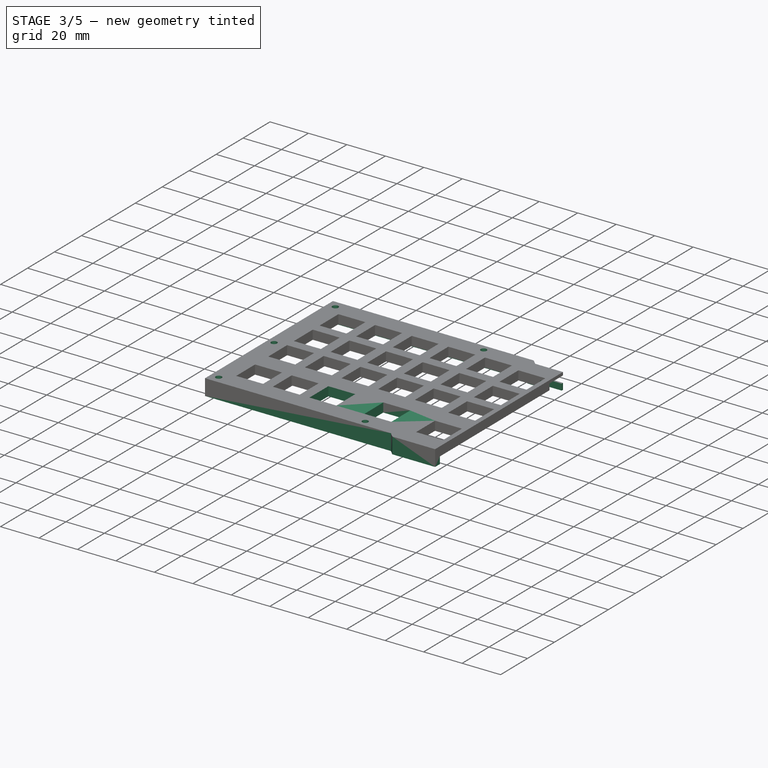
[diagram: stage 3 of 5 — iso view after this stage's code; geometry added in this stage tinted green]
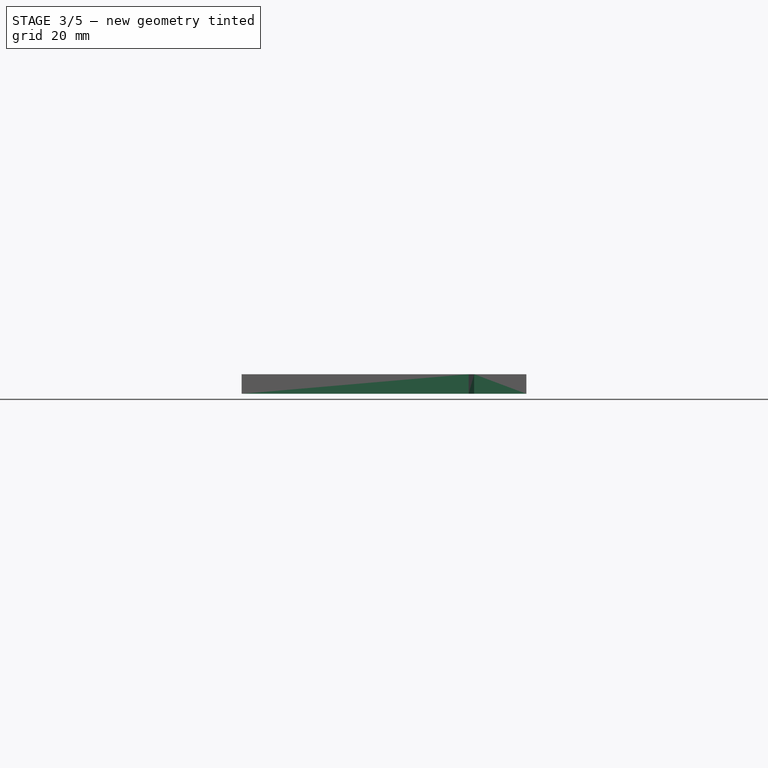
[diagram: stage 3 of 5 — front view after this stage's code; geometry added in this stage tinted green]
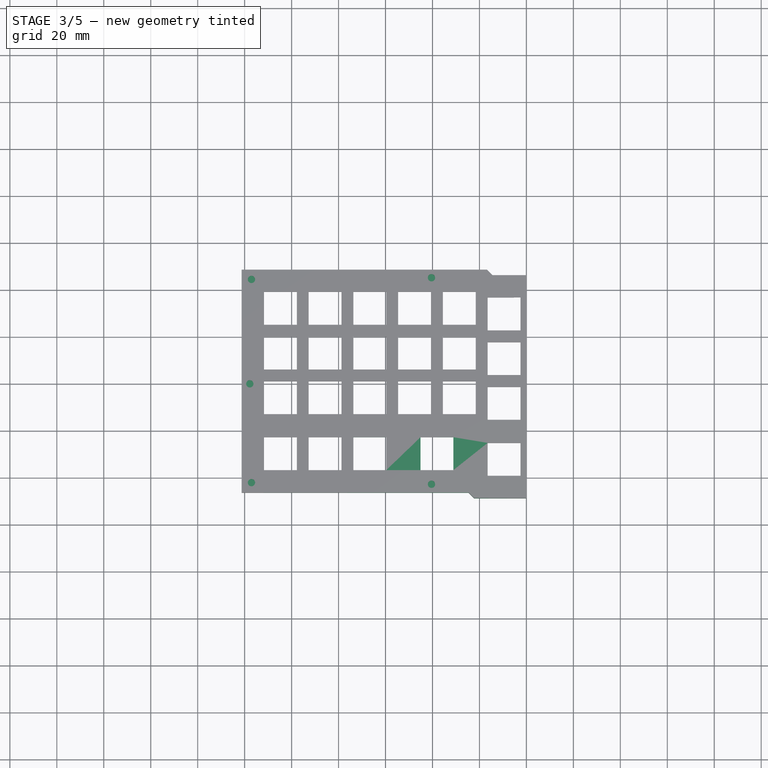
[diagram: stage 3 of 5 — top view after this stage's code; geometry added in this stage tinted green]
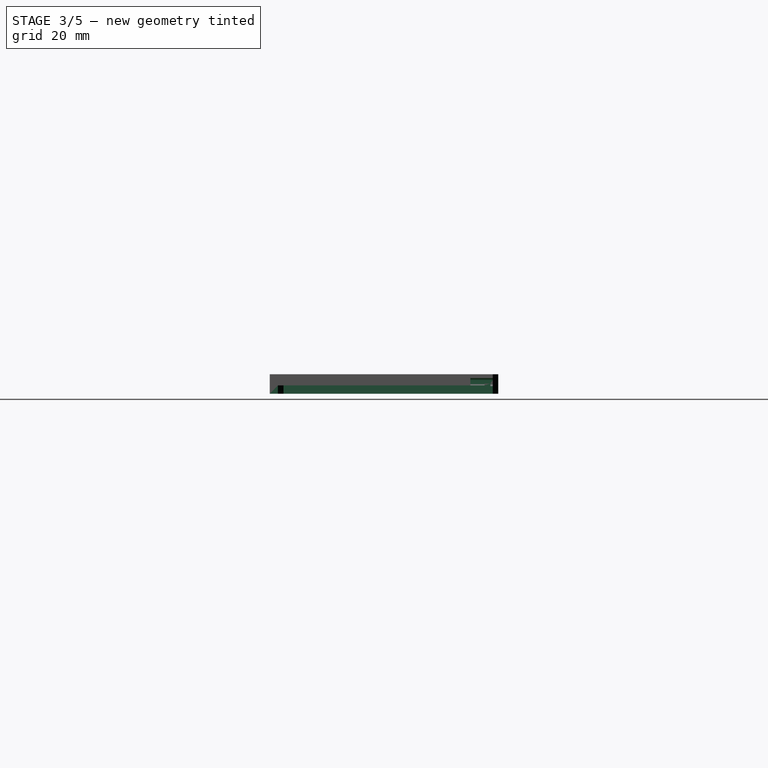
[diagram: stage 3 of 5 — right view after this stage's code; geometry added in this stage tinted green]
FEATURE [Sketcher::SketchObject] Sketch062
  ExternalGeometry = -> [Pocket]
  FullyConstrained = true
  MapMode = 5
  Placement = pos=(0,0,-4.75) rot=(1,0,0;3.14159rad)
  Support = -> [Pocket]
  expr: Constraints[36] = <<vals_Case>>.wallThickness / 2
  expr: Constraints[37] = <<vals_Case>>.wallThickness / 2
  expr: Constraints[38] = <<vals_Case>>.wallThickness / 2
  expr: Constraints[39] = <<vals_Case>>.wallThickness / 2
  expr: Constraints[40] = <<vals_Case>>.wallThickness / 2
  expr: Constraints[43] = <<vals_Case>>.wallThickness / 2
  sketch-geometry (18):
    g0: LineSegment StartX=-121.3 StartY=46.2906 StartZ=0 EndX=-24.6236 EndY=46.2906 EndZ=0
    g1: LineSegment StartX=-24.6236 StartY=46.2906 StartZ=0 EndX=-22.2424 EndY=48.6719 EndZ=0
    g2: LineSegment StartX=-22.2424 StartY=48.6719 StartZ=0 EndX=0 EndY=48.6719 EndZ=0
    g3: LineSegment StartX=0 StartY=-46.2906 StartZ=0 EndX=-14.4764 EndY=-46.2906 EndZ=0
    g4: LineSegment StartX=-14.4764 StartY=-46.2906 StartZ=0 EndX=-16.8576 EndY=-48.6719 EndZ=0
    g5: LineSegment StartX=-16.8576 StartY=-48.6719 StartZ=0 EndX=-121.3 EndY=-48.6719 EndZ=0
    g6: LineSegment StartX=-121.3 StartY=-48.6719 StartZ=0 EndX=-121.3 EndY=46.2906 EndZ=0
    g7: LineSegment StartX=-117.8 StartY=42.7906 StartZ=0 EndX=-23.1739 EndY=42.7906 EndZ=0
    g8: LineSegment StartX=-23.1739 StartY=42.7906 StartZ=0 EndX=-20.7926 EndY=45.1719 EndZ=0
    g9: LineSegment StartX=-20.7926 StartY=45.1719 StartZ=0 EndX=0 EndY=45.1719 EndZ=0
    g10: LineSegment StartX=0 StartY=-42.7906 StartZ=0 EndX=-15.9261 EndY=-42.7906 EndZ=0
    g11: LineSegment StartX=-15.9261 StartY=-42.7906 StartZ=0 EndX=-18.3074 EndY=-45.1719 EndZ=0
    g12: LineSegment StartX=-18.3074 StartY=-45.1719 StartZ=0 EndX=-117.8 EndY=-45.1719 EndZ=0
    g13: LineSegment StartX=-117.8 StartY=-45.1719 StartZ=0 EndX=-117.8 EndY=42.7906 EndZ=0
    g14: LineSegment StartX=0 StartY=-42.7906 StartZ=0 EndX=0 EndY=-46.2906 EndZ=0
    g15: LineSegment StartX=0 StartY=45.1719 StartZ=0 EndX=0 EndY=48.6719 EndZ=0
    g16: LineSegment StartX=-21.9833 StartY=43.9813 StartZ=0 EndX=-24.4581 EndY=46.4561 EndZ=0
    g17: LineSegment StartX=-17.1167 StartY=-43.9813 StartZ=0 EndX=-14.6419 EndY=-46.4561 EndZ=0
  constraints (50):
    c: Coincident(g-3,g0)
    c: Horizontal(g0)
    c: Coincident(g0,g1)
    c: Coincident(g1,g-4)
    c: Coincident(g1,g2)
    c: PointOnObject(g2,g-2)
    c: PointOnObject(g3,g-2)
    c: Coincident(g3,g-5)
    c: Coincident(g3,g4)
    c: Coincident(g4,g5)
    c: Coincident(g5,g-3)
    c: Horizontal(g5)
    c: Coincident(g5,g6)
    c: Coincident(g6,g0)
    c: Angle(g1,g-2) = 0.785398
    c: Horizontal(g2)
    c: Horizontal(g3)
    c: Parallel(g1,g4)
    c: Horizontal(g7)
    c: Coincident(g7,g8)
    c: Coincident(g8,g9)
    c: Horizontal(g9)
    c: Coincident(g10,g11)
    c: Coincident(g11,g12)
    c: Horizontal(g12)
    c: Coincident(g12,g13)
    c: Coincident(g13,g7)
    c: Vertical(g13)
    c: Parallel(g8,g1)
    c: Coincident(g14,g10)
    c: Coincident(g14,g3)
    c: Coincident(g15,g9)
    c: Coincident(g15,g2)
    c: Vertical(g15)
    c: PointOnObject(g16,g1)
    c: Perpendicular(g16,g8)
    c: Distance(g16) = 3.5
    c: DistanceY(g15,g15) = 3.5
    c: DistanceY(g7,g0) = 3.5
    c: DistanceX(g0,g7) = 3.5
    c: DistanceY(g5,g12) = 3.5
    c: Horizontal(g10)
    c: Parallel(g11,g4)
    c: DistanceY(g14,g14) = 3.5
    c: PointOnObject(g17,g4)
    c: Perpendicular(g4,g17)
    c: Equal(g17,g16)
    c: Symmetric(g8,g8,g16)
    c: Symmetric(g11,g11,g17)
    c: Vertical(g14)
FEATURE [PartDesign::Pad] Pad
  BaseFeature = -> Pocket
  Direction = (0,0,-1)
  Length = 3.6
  Length2 = 10
  Profile = -> Sketch062
  ReferenceAxis = -> Sketch062 [N_Axis]
  Refine = true
  Type = 0
  expr: Length = <<vals_Case>>.platetoPCB + <<vals_Case>>.pcbThickness + <<vals_Case>>.hsHeight + <<vals_Case>>.hsSafety
FEATURE [App::MaterialObjectPython] Material  label="Keycaps White"  # material (typed FeaturePython)
  Description = Glossy Plastic Material for Render
  Material = AuthorAndLicense=General name; CardName=GlossyPlastic; Color=(0.8, 0.8, 0.8, 1.0); Description=Glossy Plastic Material for Render; DiffuseColor=(0.8, 0.8, 0.8, 1.0); Name=Keycaps White; Render.Disney.Anisotropic=0.0; Render.Disney.BaseColor=(0.9294117647058824,0.9294117647058824,0.9294117647058824); Render.Disney.ClearCoat=0.0; Render.Disney.ClearCoatGloss=0.0; Render.Disney.Metallic=0.0; Render.Disney.Roughness=0.1; Render.Disney.Sheen=0.0; Render.Disney.SheenTint=0.0; Render.Disney.Specular=0.5; Render.Disney.SpecularTint=0.0; Render.Disney.Subsurface=0.0; Render.Ospray.0001=# use coat instead of specular; Render.Ospray.0002=type principled; Render.Ospray.0003=baseColor %RED% %GREEN% %BLUE%; Render.Ospray.0004=roughness 0.4; Render.Ospray.0005=coat 0.8; Render.Ospray.0006=coatRoughness 0.1; Render.Pbrt.0001=Material "coateddiffuse"; Render.Pbrt.0002="rgb reflectance" [ %RED% %GREEN% %BLUE% ]; Render.Pbrt.0003="float roughness" [ 0.1 ]; Render.Type=Disney; SectionColor=(0.0, 0.0, 0.0, 1.0); Transparency=0; UseObjectColor=True; ViewColor=(0.8, 0.8, 0.8, 1.0)
  Transparency = 0
FEATURE [App::MaterialObjectPython] Material001  label="RoughPlastic White"  # material (typed FeaturePython)
  Description = Rough Plastic Material for Render
  Material = CardName=RoughPlastic; Color=(0.9607843137254902, 0.9607843137254902, 0.9686274509803922, 1.0); Description=Rough Plastic Material for Render; DiffuseColor=(0.9607843137254902, 0.9607843137254902, 0.9686274509803922, 1.0); Name=RoughPlastic White; Render.Disney.Anisotropic=0.0; Render.Disney.BaseColor=(0.8784313725490196,0.8784313725490196,0.8784313725490196); Render.Disney.ClearCoat=0.0; Render.Disney.ClearCoatGloss=0.0; Render.Disney.Metallic=0.0; Render.Disney.Roughness=0.5; Render.Disney.Sheen=0.0; Render.Disney.SheenTint=0.0; Render.Disney.Specular=0.5; Render.Disney.SpecularTint=0.0; Render.Disney.Subsurface=0.0; Render.Ospray.0001=# use coat instead of specular; Render.Ospray.0002=type principled; Render.Ospray.0003=baseColor %RED% %GREEN% %BLUE%; Render.Ospray.0004=roughness 0.4; Render.Ospray.0005=coat 0.8; Render.Ospray.0006=coatRoughness 0.5; Render.Pbrt.0001=Material "coateddiffuse"; Render.Pbrt.0002="rgb reflectance" [ %RED% %GREEN% %BLUE% ]; Render.Pbrt.0003="float roughness" [ 0.8 ]; Render.Type=Disney; SectionColor=(0.9607843137254902, 0.9607843137254902, 0.9686274509803922, 1.0); Transparency=0; UseObjectColor=True; ViewColor=(0.9607843137254902, 0.9607843137254902, 0.9686274509803922, 1.0)
  Transparency = 0
FEATURE [App::MaterialObjectPython] Material002  label="melon"  # material (typed FeaturePython)
  Description = Carpaint Material for Render
  Material = AuthorAndLicense=General name; CardName=Carpaint; Color=(0.8, 0.8, 0.8, 1.0); Description=Carpaint Material for Render; DiffuseColor=(0.8, 0.8, 0.8, 1.0); Name=melon; Render.Carpaint.BaseColor=(1.0,0.6078431372549019,0.0); Render.Type=Carpaint; SectionColor=(0.8, 0.8, 0.8, 1.0); Transparency=0; UseObjectColor=True; ViewColor=(0.8, 0.8, 0.8, 1.0)
  Transparency = 0
FEATURE [App::MaterialObjectPython] Material003  label="GlossyPlastic Black"  # material (typed FeaturePython)
  Description = Glossy Plastic Material for Render
  Material = AuthorAndLicense=General name; CardName=GlossyPlastic; Color=(0.8, 0.8, 0.8, 1.0); Description=Glossy Plastic Material for Render; DiffuseColor=(0.8, 0.8, 0.8, 1.0); Name=GlossyPlastic Black; Render.Disney.Anisotropic=0.0; Render.Disney.BaseColor=(0.13333333333333333,0.13333333333333333,0.13333333333333333); Render.Disney.ClearCoat=0.0; Render.Disney.ClearCoatGloss=0.0; Render.Disney.Metallic=0.0; Render.Disney.Roughness=0.1; Render.Disney.Sheen=0.0; Render.Disney.SheenTint=0.0; Render.Disney.Specular=0.5; Render.Disney.SpecularTint=0.0; Render.Disney.Subsurface=0.0; Render.Ospray.0001=# use coat instead of specular; Render.Ospray.0002=type principled; Render.Ospray.0003=baseColor %RED% %GREEN% %BLUE%; Render.Ospray.0004=roughness 0.4; Render.Ospray.0005=coat 0.8; Render.Ospray.0006=coatRoughness 0.1; Render.Pbrt.0001=Material "coateddiffuse"; Render.Pbrt.0002="rgb reflectance" [ %RED% %GREEN% %BLUE% ]; Render.Pbrt.0003="float roughness" [ 0.1 ]; Render.Type=Disney; SectionColor=(0.8, 0.8, 0.8, 1.0); Transparency=0; UseObjectColor=True; ViewColor=(0.8, 0.8, 0.8, 1.0)
  Transparency = 0
FEATURE [App::DocumentObjectGroupPython] MaterialContainer  label="Materials"  # scripted group (container) (typed FeaturePython)
  Group = -> [Material,Material001,Material002,Material003]
FEATURE [Sketcher::SketchObject] Sketch073
  FullyConstrained = true
  MapMode = 5
  Placement = pos=(0,46.2906,0) rot=(0,0.707107,0.707107;3.14159rad)
  Support = -> [Pad]
  expr: Constraints[20] = 5 - 3.2 / 2 - 0.05
  sketch-geometry (9):
    g0: LineSegment StartX=0 StartY=-1.6 StartZ=0 EndX=4.5 EndY=-1.6 EndZ=0
    g1: LineSegment StartX=5.5 StartY=-2.6 StartZ=0 EndX=5.5 EndY=-4.1 EndZ=0
    g2: LineSegment StartX=4.5 StartY=-5.1 StartZ=0 EndX=0 EndY=-5.1 EndZ=0
    g3: LineSegment StartX=0 StartY=-5.1 StartZ=0 EndX=0 EndY=-1.6 EndZ=0
    g4: ArcOfCircle CenterX=4.5 CenterY=-2.6 CenterZ=0 NormalX=0 NormalY=0 NormalZ=1 AngleXU=0 Radius=1 StartAngle=1e-16 EndAngle=1.5708
    g5: GeomPoint X=5.5 Y=-1.6 Z=0
    g6: ArcOfCircle CenterX=4.5 CenterY=-4.1 CenterZ=0 NormalX=0 NormalY=0 NormalZ=1 AngleXU=0 Radius=1 StartAngle=4.71239 EndAngle=6.28319
    g7: GeomPoint X=5.5 Y=-5.1 Z=0
    g8: GeomPoint X=0 Y=-3.35 Z=0
  constraints (21):
    c: Coincident(g2,g3)
    c: Coincident(g3,g0)
    c: Horizontal(g0)
    c: Horizontal(g2)
    c: Vertical(g1)
    c: Vertical(g3)
    c: PointOnObject(g0,g-2)
    c: DistanceX(g0,g5) = 5.5
    c: DistanceY(g7,g5) = 3.5
    c: PointOnObject(g5,g0)
    c: PointOnObject(g5,g1)
    c: Tangent(g0,g4) = 1.5708
    c: Tangent(g1,g4) = 1.5708
    c: PointOnObject(g7,g1)
    c: PointOnObject(g7,g2)
    c: Tangent(g1,g6) = 1.5708
    c: Tangent(g2,g6) = 1.5708
    c: Equal(g4,g6)
    c: Radius(g4) = 1
    c: Symmetric(g3,g3,g8)
    c: DistanceY(g8,g-1) = 3.35
FEATURE [PartDesign::Pocket] Pocket025
  BaseFeature = -> Pad
  Direction = (0,-1,-2e-16)
  Length = 10
  Length2 = 5
  Profile = -> Sketch073
  ReferenceAxis = -> Sketch073 [N_Axis]
  Type = 0
FEATURE [Sketcher::SketchObject] Sketch074
  FullyConstrained = true
  MapMode = 5
  Placement = pos=(0,0,0) rot=(0.57735,0.57735,0.57735;2.0944rad)
  Support = -> [Pocket025]
  expr: Constraints[9] = <<vals_Case>>.caseHeight / 2 - <<vals_Case>>.LWallThickness - <<vals_Case>>.midOffset
  sketch-geometry (4):
    g0: LineSegment StartX=42.7906 StartY=-34 StartZ=0 EndX=45.2906 EndY=-34 EndZ=0
    g1: LineSegment StartX=45.2906 StartY=-34 StartZ=0 EndX=45.2906 EndY=-4 EndZ=0
    g2: LineSegment StartX=45.2906 StartY=-4 StartZ=0 EndX=42.7906 EndY=-4 EndZ=0
    g3: LineSegment StartX=42.7906 StartY=-4 StartZ=0 EndX=42.7906 EndY=-34 EndZ=0
  constraints (12):
    c: Coincident(g0,g1)
    c: Coincident(g1,g2)
    c: Coincident(g2,g3)
    c: Coincident(g3,g0)
    c: Horizontal(g0)
    c: Horizontal(g2)
    c: Vertical(g1)
    c: Vertical(g3)
    c: DistanceY(g1,g-1) = 4
    c: DistanceX(g-1,g2) = 42.7906
    c: DistanceY(g3,g3) = 30
    c: DistanceX(g2,g2) = 2.5
FEATURE [PartDesign::Pocket] Pocket026
  BaseFeature = -> Pocket025
  Direction = (-1,0,0)
  Length = 9
  Length2 = 5
  Profile = -> Sketch074
  ReferenceAxis = -> Sketch074 [N_Axis]
  Type = 0
FEATURE [PartDesign::ShapeBinder] ShapeBinder001
  Support = -> [Pocket027]
  TraceSupport = false
FEATURE [Sketcher::SketchObject] Sketch076
  ExternalGeometry = -> [ShapeBinder001]
  FullyConstrained = true
  MapMode = 5
  Support = -> [Pocket026]
  expr: Constraints[9] = <<vals_Case>>.magRad
  sketch-geometry (5):
    g0: Circle CenterX=-117.098 CenterY=44.47 CenterZ=0 NormalX=0 NormalY=0 NormalZ=1 AngleXU=0 Radius=1.55
    g1: Circle CenterX=-40.4333 CenterY=45.1719 CenterZ=0 NormalX=0 NormalY=0 NormalZ=1 AngleXU=0 Radius=1.55
    g2: Circle CenterX=-117.8 CenterY=0 CenterZ=0 NormalX=0 NormalY=0 NormalZ=1 AngleXU=0 Radius=1.55
    g3: Circle CenterX=-117.098 CenterY=-42.0887 CenterZ=0 NormalX=0 NormalY=0 NormalZ=1 AngleXU=0 Radius=1.55
    g4: Circle CenterX=-40.4333 CenterY=-42.7906 CenterZ=0 NormalX=0 NormalY=0 NormalZ=1 AngleXU=0 Radius=1.55
  constraints (10):
    c: Coincident(g0,g-3)
    c: Coincident(g1,g-4)
    c: Coincident(g2,g-5)
    c: Coincident(g3,g-6)
    c: Coincident(g4,g-7)
    c: Equal(g4,g3)
    c: Equal(g3,g2)
    c: Equal(g2,g0)
    c: Equal(g0,g1)
    c: Radius(g1) = 1.55
FEATURE [PartDesign::Pocket] Pocket028
  BaseFeature = -> Pocket026
  Direction = (0,0,-1)
  Length = 3
  Length2 = 5
  Profile = -> Sketch076
  ReferenceAxis = -> Sketch076 [N_Axis]
  Type = 0
FEATURE [Sketcher::SketchObject] Sketch078
  ExternalGeometry = -> [Pocket028,Sketch038]
  FullyConstrained = true
  MapMode = 5
  Support = -> [Pocket028]
  sketch-geometry (12):
    g0: LineSegment StartX=-70.175 StartY=-20.7906 StartZ=0 EndX=-63.175 EndY=-20.7906 EndZ=0
    g1: LineSegment StartX=-63.175 StartY=-20.7906 StartZ=0 EndX=-63.175 EndY=-35.7906 EndZ=0
    g2: LineSegment StartX=-63.175 StartY=-35.7906 StartZ=0 EndX=-70.175 EndY=-35.7906 EndZ=0
    g3: LineSegment StartX=-70.175 StartY=-35.7906 StartZ=0 EndX=-70.175 EndY=-20.7906 EndZ=0
    g4: LineSegment StartX=-54.625 StartY=-22.7906 StartZ=0 EndX=-40.625 EndY=-22.7906 EndZ=0
    g5: LineSegment StartX=-40.625 StartY=-22.7906 StartZ=0 EndX=-40.625 EndY=-36.7906 EndZ=0
    g6: LineSegment StartX=-40.625 StartY=-36.7906 StartZ=0 EndX=-54.625 EndY=-36.7906 EndZ=0
    g7: LineSegment StartX=-54.625 StartY=-36.7906 StartZ=0 EndX=-54.625 EndY=-22.7906 EndZ=0
    g8: LineSegment StartX=-32.075 StartY=-20.7906 StartZ=0 EndX=-25.075 EndY=-20.7906 EndZ=0
    g9: LineSegment StartX=-25.075 StartY=-20.7906 StartZ=0 EndX=-25.075 EndY=-35.7906 EndZ=0
    g10: LineSegment StartX=-25.075 StartY=-35.7906 StartZ=0 EndX=-32.075 EndY=-35.7906 EndZ=0
    g11: LineSegment StartX=-32.075 StartY=-35.7906 StartZ=0 EndX=-32.075 EndY=-20.7906 EndZ=0
  constraints (30):
    c: Coincident(g0,g1)
    c: Coincident(g1,g2)
    c: Coincident(g2,g3)
    c: Coincident(g3,g0)
    c: Horizontal(g0)
    c: Horizontal(g2)
    c: Vertical(g1)
    c: Vertical(g3)
    c: Coincident(g0,g-3)
    c: Coincident(g1,g-4)
    c: Coincident(g4,g5)
    c: Coincident(g5,g6)
    c: Coincident(g6,g7)
    c: Coincident(g7,g4)
    c: Horizontal(g4)
    c: Horizontal(g6)
    c: Vertical(g5)
    c: Vertical(g7)
    c: Coincident(g4,g-5)
    c: Coincident(g5,g-6)
    c: Coincident(g8,g9)
    c: Coincident(g9,g10)
    c: Coincident(g10,g11)
    c: Coincident(g11,g8)
    c: Horizontal(g8)
    c: Horizontal(g10)
    c: Vertical(g9)
    c: Vertical(g11)
    c: Coincident(g8,g-7)
    c: Coincident(g9,g-8)
FEATURE [PartDesign::Pad] Pad024
  BaseFeature = -> Pocket028
  Direction = (0,0,1)
  Length = 4.75
  Length2 = 10
  Profile = -> Sketch078
  ReferenceAxis = -> Sketch078 [N_Axis]
  Refine = true
  Reversed = true
  Type = 0
  expr: Length = <<vals_Case>>.plateHeight
FEATURE [Sketcher::SketchObject] Sketch079
  ExternalGeometry = -> [Pad024]
  FullyConstrained = true
  MapMode = 5
  Placement = pos=(0,0,-4.75) rot=(1,0,0;3.14159rad)
  Support = -> [Pad024]
  expr: Constraints[20] = <<vals_Case>>.spacing * 1.5
  expr: Constraints[23] = <<vals_Case>>.spacing
  sketch-geometry (8):
    g0: LineSegment StartX=-73.675 StartY=22.7406 StartZ=0 EndX=-59.675 EndY=22.7406 EndZ=0
    g1: LineSegment StartX=-59.675 StartY=22.7406 StartZ=0 EndX=-59.675 EndY=36.7406 EndZ=0
    g2: LineSegment StartX=-59.675 StartY=36.7406 StartZ=0 EndX=-73.675 EndY=36.7406 EndZ=0
    g3: LineSegment StartX=-73.675 StartY=36.7406 StartZ=0 EndX=-73.675 EndY=22.7406 EndZ=0
    g4: LineSegment StartX=-31.1 StartY=22.7406 StartZ=0 EndX=-45.1 EndY=22.7406 EndZ=0
    g5: LineSegment StartX=-45.1 StartY=22.7406 StartZ=0 EndX=-45.1 EndY=36.7406 EndZ=0
    g6: LineSegment StartX=-45.1 StartY=36.7406 StartZ=0 EndX=-31.1 EndY=36.7406 EndZ=0
    g7: LineSegment StartX=-31.1 StartY=36.7406 StartZ=0 EndX=-31.1 EndY=22.7406 EndZ=0
  constraints (24):
    c: Coincident(g0,g1)
    c: Coincident(g1,g2)
    c: Coincident(g2,g3)
    c: Coincident(g3,g0)
    c: Horizontal(g0)
    c: Horizontal(g2)
    c: Vertical(g1)
    c: Vertical(g3)
    c: Coincident(g4,g5)
    c: Coincident(g5,g6)
    c: Coincident(g6,g7)
    c: Coincident(g7,g4)
    c: Horizontal(g4)
    c: Horizontal(g6)
    c: Vertical(g5)
    c: Vertical(g7)
    c: Equal(g0,g4)
    c: Equal(g4,g5)
    c: Equal(g5,g1)
    c: DistanceX(g0,g0) = 14
    c: DistanceX(g0,g4) = 28.575
    c: Horizontal(g-3,g1)
    c: Horizontal(g1,g6)
    c: DistanceX(g-3,g1) = 19.05
FEATURE [PartDesign::Pocket] Pocket029
  BaseFeature = -> Pad024
  Direction = (0,0,1)
  Length = 4.75
  Length2 = 5
  Profile = -> Sketch079
  ReferenceAxis = -> Sketch079 [N_Axis]
  Type = 0
  expr: Length = <<vals_Case>>.plateHeight
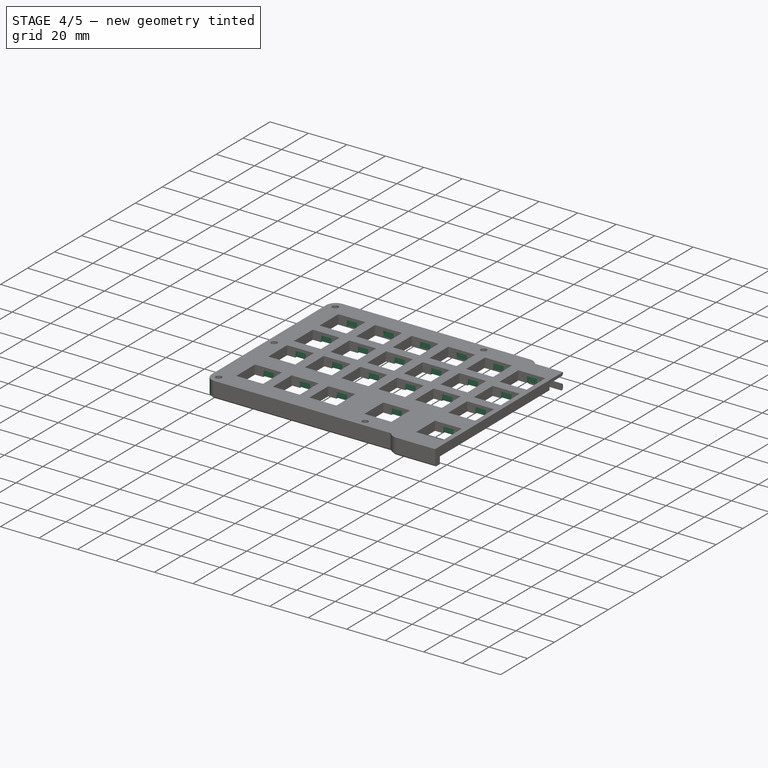
[diagram: stage 4 of 5 — iso view after this stage's code; geometry added in this stage tinted green]
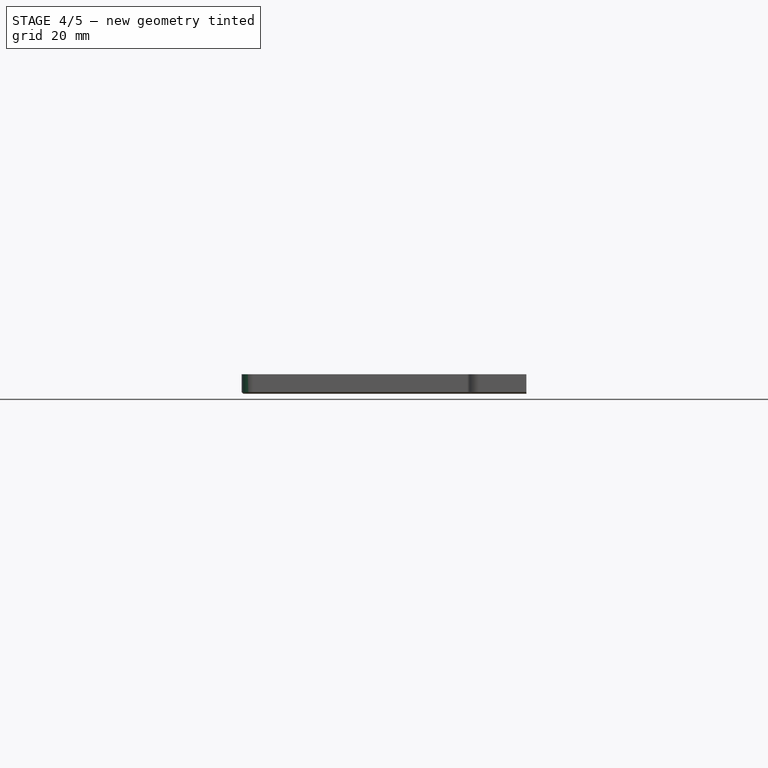
[diagram: stage 4 of 5 — front view after this stage's code; geometry added in this stage tinted green]
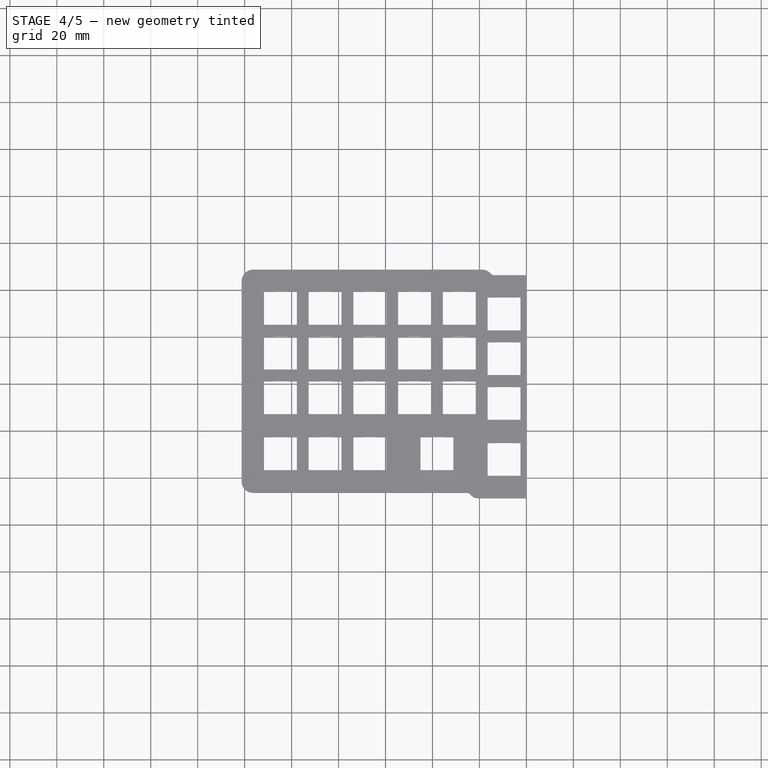
[diagram: stage 4 of 5 — top view after this stage's code; geometry added in this stage tinted green]
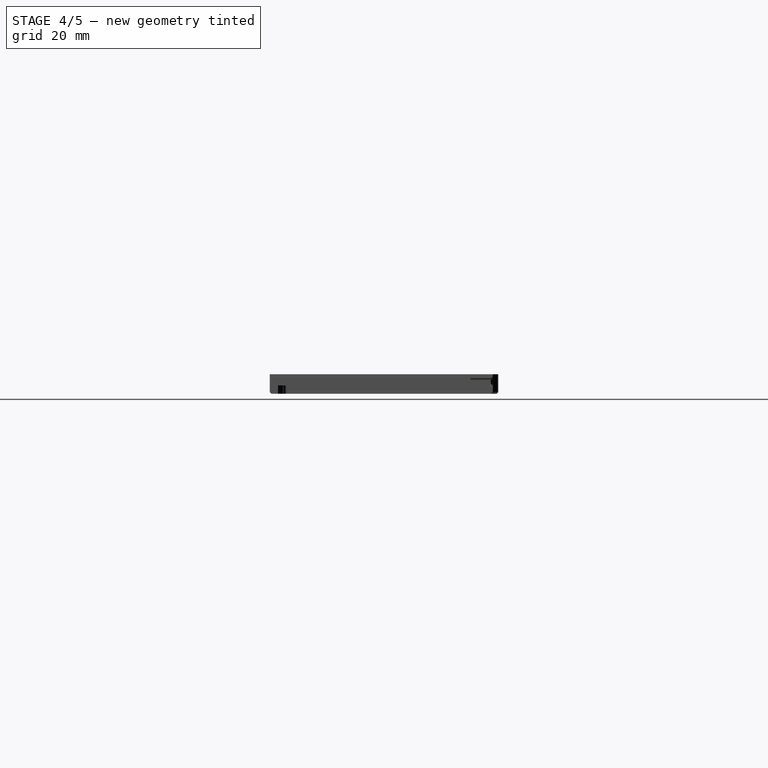
[diagram: stage 4 of 5 — right view after this stage's code; geometry added in this stage tinted green]
FEATURE [Sketcher::SketchObject] Sketch077
  ExternalGeometry = -> [Pocket028]
  FullyConstrained = true
  MapMode = 5
  Placement = pos=(0,0,-4.75) rot=(1,0,0;3.14159rad)
  Support = -> [Pocket029]
  expr: Constraints[256] = <<vals_Case>>.spacing
  expr: Constraints[257] = <<vals_Case>>.spacing
  expr: Constraints[258] = <<vals_Case>>.spacing * 1.5
  expr: Constraints[259] = <<vals_Case>>.spacing * 1.5
  expr: Constraints[260] = <<vals_Case>>.spacing
  expr: Constraints[261] = <<vals_Case>>.spacing + <<vals_Case>>.spaceOffset
  expr: Constraints[262] = <<vals_Case>>.spacing
  expr: Constraints[263] = <<vals_Case>>.spacing
  expr: Constraints[266] = <<vals_Case>>.spacing
  expr: Constraints[267] = <<vals_Case>>.midOffset
  expr: Constraints[268] = <<vals_Case>>.midOffset
  expr: Constraints[272] = <<vals_Case>>.midOffset
  expr: Constraints[273] = <<vals_Case>>.midOffset
  sketch-geometry (94):
    g0: LineSegment StartX=-107.525 StartY=37.7406 StartZ=0 EndX=-102.025 EndY=37.7406 EndZ=0
    g1: LineSegment StartX=-102.025 StartY=37.7406 StartZ=0 EndX=-102.025 EndY=21.7406 EndZ=0
    g2: LineSegment StartX=-102.025 StartY=21.7406 StartZ=0 EndX=-107.525 EndY=21.7406 EndZ=0
    g3: LineSegment StartX=-107.525 StartY=21.7406 StartZ=0 EndX=-107.525 EndY=37.7406 EndZ=0
    g4: LineSegment StartX=-88.475 StartY=37.7406 StartZ=0 EndX=-82.975 EndY=37.7406 EndZ=0
    g5: LineSegment StartX=-82.975 StartY=37.7406 StartZ=0 EndX=-82.975 EndY=21.7406 EndZ=0
    g6: LineSegment StartX=-82.975 StartY=21.7406 StartZ=0 EndX=-88.475 EndY=21.7406 EndZ=0
    g7: LineSegment StartX=-88.475 StartY=21.7406 StartZ=0 EndX=-88.475 EndY=37.7406 EndZ=0
    g8: LineSegment StartX=-107.525 StartY=13.9281 StartZ=0 EndX=-102.025 EndY=13.9281 EndZ=0
    g9: LineSegment StartX=-102.025 StartY=13.9281 StartZ=0 EndX=-102.025 EndY=-2.07187 EndZ=0
    g10: LineSegment StartX=-102.025 StartY=-2.07187 StartZ=0 EndX=-107.525 EndY=-2.07187 EndZ=0
    g11: LineSegment StartX=-107.525 StartY=-2.07187 StartZ=0 EndX=-107.525 EndY=13.9281 EndZ=0
    g12: LineSegment StartX=-88.475 StartY=13.9281 StartZ=0 EndX=-82.975 EndY=13.9281 EndZ=0
    g13: LineSegment StartX=-82.975 StartY=13.9281 StartZ=0 EndX=-82.975 EndY=-2.07187 EndZ=0
    g14: LineSegment StartX=-82.975 StartY=-2.07187 StartZ=0 EndX=-88.475 EndY=-2.07187 EndZ=0
    g15: LineSegment StartX=-88.475 StartY=-2.07187 StartZ=0 EndX=-88.475 EndY=13.9281 EndZ=0
    g16: LineSegment StartX=-107.525 StartY=-5.12188 StartZ=0 EndX=-102.025 EndY=-5.12188 EndZ=0
    g17: LineSegment StartX=-102.025 StartY=-5.12188 StartZ=0 EndX=-102.025 EndY=-21.1219 EndZ=0
    g18: LineSegment StartX=-102.025 StartY=-21.1219 StartZ=0 EndX=-107.525 EndY=-21.1219 EndZ=0
    g19: LineSegment StartX=-107.525 StartY=-21.1219 StartZ=0 EndX=-107.525 EndY=-5.12188 EndZ=0
    g20: LineSegment StartX=-107.525 StartY=-24.1719 StartZ=0 EndX=-102.025 EndY=-24.1719 EndZ=0
    g21: LineSegment StartX=-102.025 StartY=-24.1719 StartZ=0 EndX=-102.025 EndY=-40.1719 EndZ=0
    g22: LineSegment StartX=-102.025 StartY=-40.1719 StartZ=0 EndX=-107.525 EndY=-40.1719 EndZ=0
    g23: LineSegment StartX=-107.525 StartY=-40.1719 StartZ=0 EndX=-107.525 EndY=-24.1719 EndZ=0
    g24: LineSegment StartX=-88.475 StartY=-40.1719 StartZ=0 EndX=-82.975 EndY=-40.1719 EndZ=0
    g25: LineSegment StartX=-82.975 StartY=-40.1719 StartZ=0 EndX=-82.975 EndY=-24.1719 EndZ=0
    g26: LineSegment StartX=-82.975 StartY=-24.1719 StartZ=0 EndX=-88.475 EndY=-24.1719 EndZ=0
    g27: LineSegment StartX=-88.475 StartY=-24.1719 StartZ=0 EndX=-88.475 EndY=-40.1719 EndZ=0
    g28: LineSegment StartX=-88.475 StartY=-5.12188 StartZ=0 EndX=-82.975 EndY=-5.12188 EndZ=0
    g29: LineSegment StartX=-82.975 StartY=-5.12188 StartZ=0 EndX=-82.975 EndY=-21.1219 EndZ=0
    g30: LineSegment StartX=-82.975 StartY=-21.1219 StartZ=0 EndX=-88.475 EndY=-21.1219 EndZ=0
    g31: LineSegment StartX=-88.475 StartY=-21.1219 StartZ=0 EndX=-88.475 EndY=-5.12188 EndZ=0
    g32: LineSegment StartX=-69.425 StartY=37.7406 StartZ=0 EndX=-63.925 EndY=37.7406 EndZ=0
    g33: LineSegment StartX=-63.925 StartY=37.7406 StartZ=0 EndX=-63.925 EndY=21.7406 EndZ=0
    g34: LineSegment StartX=-63.925 StartY=21.7406 StartZ=0 EndX=-69.425 EndY=21.7406 EndZ=0
    g35: LineSegment StartX=-69.425 StartY=21.7406 StartZ=0 EndX=-69.425 EndY=37.7406 EndZ=0
    g36: LineSegment StartX=-69.425 StartY=13.9281 StartZ=0 EndX=-63.925 EndY=13.9281 EndZ=0
    g37: LineSegment StartX=-63.925 StartY=13.9281 StartZ=0 EndX=-63.925 EndY=-2.07187 EndZ=0
    g38: LineSegment StartX=-63.925 StartY=-2.07187 StartZ=0 EndX=-69.425 EndY=-2.07187 EndZ=0
    g39: LineSegment StartX=-69.425 StartY=-2.07187 StartZ=0 EndX=-69.425 EndY=13.9281 EndZ=0
    g40: LineSegment StartX=-69.425 StartY=-5.12188 StartZ=0 EndX=-63.925 EndY=-5.12188 EndZ=0
    g41: LineSegment StartX=-63.925 StartY=-5.12188 StartZ=0 EndX=-63.925 EndY=-21.1219 EndZ=0
    g42: LineSegment StartX=-63.925 StartY=-21.1219 StartZ=0 EndX=-69.425 EndY=-21.1219 EndZ=0
    g43: LineSegment StartX=-69.425 StartY=-21.1219 StartZ=0 EndX=-69.425 EndY=-5.12188 EndZ=0
    g44: LineSegment StartX=-69.425 StartY=-24.1719 StartZ=0 EndX=-63.925 EndY=-24.1719 EndZ=0
    g45: LineSegment StartX=-63.925 StartY=-24.1719 StartZ=0 EndX=-63.925 EndY=-40.1719 EndZ=0
    g46: LineSegment StartX=-63.925 StartY=-40.1719 StartZ=0 EndX=-69.425 EndY=-40.1719 EndZ=0
    g47: LineSegment StartX=-69.425 StartY=-40.1719 StartZ=0 EndX=-69.425 EndY=-24.1719 EndZ=0
    g48: LineSegment StartX=-50.375 StartY=-40.1719 StartZ=0 EndX=-44.875 EndY=-40.1719 EndZ=0
    g49: LineSegment StartX=-44.875 StartY=-40.1719 StartZ=0 EndX=-44.875 EndY=-24.1719 EndZ=0
    g50: LineSegment StartX=-44.875 StartY=-24.1719 StartZ=0 EndX=-50.375 EndY=-24.1719 EndZ=0
    g51: LineSegment StartX=-50.375 StartY=-24.1719 StartZ=0 EndX=-50.375 EndY=-40.1719 EndZ=0
    g52: LineSegment StartX=-50.375 StartY=-5.12188 StartZ=0 EndX=-44.875 EndY=-5.12188 EndZ=0
    g53: LineSegment StartX=-44.875 StartY=-5.12188 StartZ=0 EndX=-44.875 EndY=-21.1219 EndZ=0
    g54: LineSegment StartX=-44.875 StartY=-21.1219 StartZ=0 EndX=-50.375 EndY=-21.1219 EndZ=0
    g55: LineSegment StartX=-50.375 StartY=-21.1219 StartZ=0 EndX=-50.375 EndY=-5.12188 EndZ=0
    g56: LineSegment StartX=-50.375 StartY=13.9281 StartZ=0 EndX=-44.875 EndY=13.9281 EndZ=0
    g57: LineSegment StartX=-44.875 StartY=13.9281 StartZ=0 EndX=-44.875 EndY=-2.07187 EndZ=0
    g58: LineSegment StartX=-44.875 StartY=-2.07187 StartZ=0 EndX=-50.375 EndY=-2.07187 EndZ=0
    g59: LineSegment StartX=-50.375 StartY=-2.07187 StartZ=0 EndX=-50.375 EndY=13.9281 EndZ=0
    g60: LineSegment StartX=-31.325 StartY=13.9281 StartZ=0 EndX=-25.825 EndY=13.9281 EndZ=0
    g61: LineSegment StartX=-25.825 StartY=13.9281 StartZ=0 EndX=-25.825 EndY=-2.07187 EndZ=0
    g62: LineSegment StartX=-25.825 StartY=-2.07187 StartZ=0 EndX=-31.325 EndY=-2.07187 EndZ=0
    g63: LineSegment StartX=-31.325 StartY=-2.07187 StartZ=0 EndX=-31.325 EndY=13.9281 EndZ=0
    g64: LineSegment StartX=-31.325 StartY=-5.12188 StartZ=0 EndX=-25.825 EndY=-5.12188 EndZ=0
    g65: LineSegment StartX=-25.825 StartY=-5.12188 StartZ=0 EndX=-25.825 EndY=-21.1219 EndZ=0
    g66: LineSegment StartX=-25.825 StartY=-21.1219 StartZ=0 EndX=-31.325 EndY=-21.1219 EndZ=0
    g67: LineSegment StartX=-31.325 StartY=-21.1219 StartZ=0 EndX=-31.325 EndY=-5.12188 EndZ=0
    g68: LineSegment StartX=-31.325 StartY=-24.1719 StartZ=0 EndX=-25.825 EndY=-24.1719 EndZ=0
    g69: LineSegment StartX=-25.825 StartY=-24.1719 StartZ=0 EndX=-25.825 EndY=-40.1719 EndZ=0
    g70: LineSegment StartX=-25.825 StartY=-40.1719 StartZ=0 EndX=-31.325 EndY=-40.1719 EndZ=0
    g71: LineSegment StartX=-31.325 StartY=-40.1719 StartZ=0 EndX=-31.325 EndY=-24.1719 EndZ=0
    g72: LineSegment StartX=-12.275 StartY=40.1219 StartZ=0 EndX=-6.775 EndY=40.1219 EndZ=0
    g73: LineSegment StartX=-6.775 StartY=40.1219 StartZ=0 EndX=-6.775 EndY=24.1219 EndZ=0
    g74: LineSegment StartX=-6.775 StartY=24.1219 StartZ=0 EndX=-12.275 EndY=24.1219 EndZ=0
    g75: LineSegment StartX=-12.275 StartY=24.1219 StartZ=0 EndX=-12.275 EndY=40.1219 EndZ=0
    g76: LineSegment StartX=-12.275 StartY=16.3094 StartZ=0 EndX=-6.775 EndY=16.3094 EndZ=0
    g77: LineSegment StartX=-6.775 StartY=16.3094 StartZ=0 EndX=-6.775 EndY=0.309375 EndZ=0
    g78: LineSegment StartX=-6.775 StartY=0.309375 StartZ=0 EndX=-12.275 EndY=0.309375 EndZ=0
    g79: LineSegment StartX=-12.275 StartY=0.309375 StartZ=0 EndX=-12.275 EndY=16.3094 EndZ=0
    g80: LineSegment StartX=-12.275 StartY=-2.74063 StartZ=0 EndX=-6.775 EndY=-2.74063 EndZ=0
    g81: LineSegment StartX=-6.775 StartY=-2.74063 StartZ=0 EndX=-6.775 EndY=-18.7406 EndZ=0
    g82: LineSegment StartX=-6.775 StartY=-18.7406 StartZ=0 EndX=-12.275 EndY=-18.7406 EndZ=0
    g83: LineSegment StartX=-12.275 StartY=-18.7406 StartZ=0 EndX=-12.275 EndY=-2.74063 EndZ=0
    g84: LineSegment StartX=-12.275 StartY=-21.7906 StartZ=0 EndX=-6.775 EndY=-21.7906 EndZ=0
    g85: LineSegment StartX=-6.775 StartY=-21.7906 StartZ=0 EndX=-6.775 EndY=-37.7906 EndZ=0
    g86: LineSegment StartX=-6.775 StartY=-37.7906 StartZ=0 EndX=-12.275 EndY=-37.7906 EndZ=0
    g87: LineSegment StartX=-12.275 StartY=-37.7906 StartZ=0 EndX=-12.275 EndY=-21.7906 EndZ=0
    g88: LineSegment StartX=-40.85 StartY=37.7406 StartZ=0 EndX=-35.35 EndY=37.7406 EndZ=0
    g89: LineSegment StartX=-35.35 StartY=37.7406 StartZ=0 EndX=-35.35 EndY=21.7406 EndZ=0
    g90: LineSegment StartX=-35.35 StartY=21.7406 StartZ=0 EndX=-40.85 EndY=21.7406 EndZ=0
    g91: LineSegment StartX=-40.85 StartY=21.7406 StartZ=0 EndX=-40.85 EndY=37.7406 EndZ=0
    g92: GeomPoint X=-104.775 Y=36.7406 Z=0
    g93: GeomPoint X=-104.775 Y=37.7406 Z=0
  constraints (278):
    c: Coincident(g0,g1)
    c: Coincident(g1,g2)
    c: Coincident(g2,g3)
    c: Coincident(g3,g0)
    c: Horizontal(g0)
    c: Horizontal(g2)
    c: Vertical(g1)
    c: Vertical(g3)
    c: Coincident(g4,g5)
    c: Coincident(g5,g6)
    c: Coincident(g6,g7)
    c: Coincident(g7,g4)
    c: Horizontal(g4)
    c: Horizontal(g6)
    c: Vertical(g5)
    c: Vertical(g7)
    c: Coincident(g8,g9)
    c: Coincident(g9,g10)
    c: Coincident(g10,g11)
    c: Coincident(g11,g8)
    c: Horizontal(g8)
    c: Horizontal(g10)
    c: Vertical(g9)
    c: Vertical(g11)
    c: Coincident(g12,g13)
    c: Coincident(g13,g14)
    c: Coincident(g14,g15)
    c: Coincident(g15,g12)
    c: Horizontal(g12)
    c: Horizontal(g14)
    c: Vertical(g13)
    c: Vertical(g15)
    c: Coincident(g16,g17)
    c: Coincident(g17,g18)
    c: Coincident(g18,g19)
    c: Coincident(g19,g16)
    c: Horizontal(g16)
    c: Horizontal(g18)
    c: Vertical(g17)
    c: Vertical(g19)
    c: Coincident(g20,g21)
    c: Coincident(g21,g22)
    c: Coincident(g22,g23)
    c: Coincident(g23,g20)
    c: Horizontal(g20)
    c: Horizontal(g22)
    c: Vertical(g21)
    c: Vertical(g23)
    c: Coincident(g24,g25)
    c: Coincident(g25,g26)
    c: Coincident(g26,g27)
    c: Coincident(g27,g24)
    c: Horizontal(g24)
    c: Horizontal(g26)
    c: Vertical(g25)
    c: Vertical(g27)
    c: Coincident(g28,g29)
    c: Coincident(g29,g30)
    c: Coincident(g30,g31)
    c: Coincident(g31,g28)
    c: Horizontal(g28)
    c: Horizontal(g30)
    c: Vertical(g29)
    c: Vertical(g31)
    c: Coincident(g32,g33)
    c: Coincident(g33,g34)
    c: Coincident(g34,g35)
    c: Coincident(g35,g32)
    c: Horizontal(g32)
    c: Horizontal(g34)
    c: Vertical(g33)
    c: Vertical(g35)
    c: Coincident(g36,g37)
    c: Coincident(g37,g38)
    c: Coincident(g38,g39)
    c: Coincident(g39,g36)
    c: Horizontal(g36)
    c: Horizontal(g38)
    c: Vertical(g37)
    c: Vertical(g39)
    c: Coincident(g40,g41)
    c: Coincident(g41,g42)
    c: Coincident(g42,g43)
    c: Coincident(g43,g40)
    c: Horizontal(g40)
    c: Horizontal(g42)
    c: Vertical(g41)
    c: Vertical(g43)
    c: Coincident(g44,g45)
    c: Coincident(g45,g46)
    c: Coincident(g46,g47)
    c: Coincident(g47,g44)
    c: Horizontal(g44)
    c: Horizontal(g46)
    c: Vertical(g45)
    c: Vertical(g47)
    c: Coincident(g48,g49)
    c: Coincident(g49,g50)
    c: Coincident(g50,g51)
    c: Coincident(g51,g48)
    c: Horizontal(g48)
    c: Horizontal(g50)
    c: Vertical(g49)
    c: Vertical(g51)
    c: Coincident(g52,g53)
    c: Coincident(g53,g54)
    c: Coincident(g54,g55)
    c: Coincident(g55,g52)
    c: Horizontal(g52)
    c: Horizontal(g54)
    c: Vertical(g53)
    c: Vertical(g55)
    c: Coincident(g56,g57)
    c: Coincident(g57,g58)
    c: Coincident(g58,g59)
    c: Coincident(g59,g56)
    c: Horizontal(g56)
    c: Horizontal(g58)
    c: Vertical(g57)
    c: Vertical(g59)
    c: Coincident(g60,g61)
    c: Coincident(g61,g62)
    c: Coincident(g62,g63)
    c: Coincident(g63,g60)
    c: Horizontal(g60)
    c: Horizontal(g62)
    c: Vertical(g61)
    c: Vertical(g63)
    c: Coincident(g64,g65)
    c: Coincident(g65,g66)
    c: Coincident(g66,g67)
    c: Coincident(g67,g64)
    c: Horizontal(g64)
    c: Horizontal(g66)
    c: Vertical(g65)
    c: Vertical(g67)
    c: Coincident(g68,g69)
    c: Coincident(g69,g70)
    c: Coincident(g70,g71)
    c: Coincident(g71,g68)
    c: Horizontal(g68)
    c: Horizontal(g70)
    c: Vertical(g69)
    c: Vertical(g71)
    c: Coincident(g72,g73)
    c: Coincident(g73,g74)
    c: Coincident(g74,g75)
    c: Coincident(g75,g72)
    c: Horizontal(g72)
    c: Horizontal(g74)
    c: Vertical(g73)
    c: Vertical(g75)
    c: Coincident(g76,g77)
    c: Coincident(g77,g78)
    c: Coincident(g78,g79)
    c: Coincident(g79,g76)
    c: Horizontal(g76)
    c: Horizontal(g78)
    c: Vertical(g77)
    c: Vertical(g79)
    c: Coincident(g80,g81)
    c: Coincident(g81,g82)
    c: Coincident(g82,g83)
    c: Coincident(g83,g80)
    c: Horizontal(g80)
    c: Horizontal(g82)
    c: Vertical(g81)
    c: Vertical(g83)
    c: Coincident(g84,g85)
    c: Coincident(g85,g86)
    c: Coincident(g86,g87)
    c: Coincident(g87,g84)
    c: Horizontal(g84)
    c: Horizontal(g86)
    c: Vertical(g85)
    c: Vertical(g87)
    c: Equal(g3,g7)
    c: Equal(g7,g35)
    c: Equal(g35,g75)
    c: Equal(g75,g79)
    c: Equal(g79,g63)
    c: Equal(g63,g59)
    c: Equal(g59,g39)
    c: Equal(g39,g15)
    c: Equal(g15,g11)
    c: Equal(g11,g19)
    c: Equal(g19,g31)
    c: Equal(g31,g43)
    c: Equal(g43,g55)
    c: Equal(g55,g67)
    c: Equal(g67,g83)
    c: Equal(g83,g23)
    c: Equal(g23,g27)
    c: Equal(g27,g47)
    c: Equal(g47,g51)
    c: Equal(g51,g71)
    c: Equal(g71,g87)
    c: Equal(g0,g4)
    c: Equal(g4,g32)
    c: Equal(g32,g72)
    c: Equal(g72,g76)
    c: Equal(g76,g60)
    c: Equal(g60,g56)
    c: Equal(g56,g36)
    c: Equal(g36,g12)
    c: Equal(g12,g8)
    c: Equal(g8,g16)
    c: Equal(g16,g28)
    c: Equal(g28,g40)
    c: Equal(g40,g52)
    c: Equal(g52,g64)
    c: Equal(g64,g80)
    c: Equal(g80,g20)
    c: Equal(g20,g26)
    c: Equal(g26,g44)
    c: Equal(g44,g50)
    c: Equal(g50,g68)
    c: Equal(g68,g84)
    c: DistanceX(g0,g0) = 5.5
    c: DistanceY(g3,g3) = 16
    c: Horizontal(g4,g0)
    c: Horizontal(g0,g32)
    c: Horizontal(g8,g12)
    c: Horizontal(g12,g36)
    c: Horizontal(g36,g56)
    c: Horizontal(g56,g60)
    c: Horizontal(g64,g52)
    c: Horizontal(g52,g40)
    c: Horizontal(g40,g28)
    c: Horizontal(g28,g16)
    c: Horizontal(g20,g26)
    c: Horizontal(g26,g44)
    c: Horizontal(g44,g50)
    c: Horizontal(g50,g68)
    c: Vertical(g2,g10)
    c: Vertical(g10,g18)
    c: Vertical(g18,g22)
    c: Vertical(g6,g14)
    c: Vertical(g14,g30)
    c: Vertical(g30,g24)
    c: Vertical(g38,g42)
    c: Vertical(g42,g46)
    c: Vertical(g58,g54)
    c: Vertical(g54,g48)
    c: Vertical(g36,g34)
    c: Coincident(g88,g89)
    c: Coincident(g89,g90)
    c: Coincident(g90,g91)
    c: Coincident(g91,g88)
    c: Horizontal(g88)
    c: Horizontal(g90)
    c: Vertical(g89)
    c: Vertical(g91)
    c: Equal(g34,g90)
    c: Equal(g91,g35)
    c: Horizontal(g88,g32)
    c: DistanceX(g0,g4) = 19.05
    c: DistanceX(g4,g32) = 19.05
    c: DistanceX(g32,g88) = 28.575
    c: DistanceX(g88,g72) = 28.575
    c: DistanceX(g32,g56) = 19.05
    c: DistanceY(g10,g2) = 23.8125
    c: DistanceY(g18,g10) = 19.05
    c: DistanceY(g22,g18) = 19.05
    c: Vertical(g60,g64)
    c: Vertical(g64,g68)
    c: DistanceX(g56,g60) = 19.05
    c: DistanceY(g88,g72) = 2.38125
    c: DistanceY(g60,g76) = 2.38125
    c: Vertical(g80,g76)
    c: Vertical(g76,g72)
    c: Vertical(g72,g84)
    c: DistanceY(g64,g80) = 2.38125
    c: DistanceY(g68,g84) = 2.38125
    c: DistanceY(g-3,g0) = 1
    c: Symmetric(g-3,g-3,g92)
    c: Symmetric(g0,g0,g93)
    c: Vertical(g92,g93)
FEATURE [PartDesign::Pocket] Pocket030
  BaseFeature = -> Pocket029
  Direction = (0,0,1)
  Length = 3.25
  Length2 = 5
  Profile = -> Sketch077
  ReferenceAxis = -> Sketch077 [N_Axis]
  Type = 0
  expr: Length = <<vals_Case>>.plateHeight - <<vals_Case>>.plateThickness
FEATURE [PartDesign::Fillet] Fillet
  Base = -> Pocket030 [Edge4,Edge127,Edge136,Edge2,Edge543,Edge536]
  BaseFeature = -> Pocket030
  Radius = 5
  SupportTransform = false
  UseAllEdges = false
  expr: Radius = <<vals_Case>>.edgeradius
FEATURE [PartDesign::Fillet] Fillet013
  Base = -> Fillet [Edge139,Edge148,Edge565,Edge549]
  BaseFeature = -> Fillet
  Radius = 1.5
  SupportTransform = false
  UseAllEdges = false
  expr: Radius = <<vals_Case>>.innerEdgeRadius
FEATURE [PartDesign::Fillet] Fillet014
  Base = -> Fillet013 [Edge949,Edge951]
  BaseFeature = -> Fillet013
  Radius = 1.5
  SupportTransform = false
  UseAllEdges = false
  expr: Radius = <<vals_Case>>.edgeradius - <<vals_Case>>.LWallThickness
FEATURE [PartDesign::Chamfer] Chamfer
  Angle = 45
  Base = -> Fillet014 [Edge28,Edge74]
  BaseFeature = -> Fillet014
  ChamferType = 0
  FlipDirection = false
  Size = 0.75
  Size2 = 1
  SupportTransform = false
  UseAllEdges = false
FEATURE [Sketcher::SketchObject] Sketch080
  ExternalGeometry = -> [Chamfer]
  FullyConstrained = true
  MapMode = 5
  Placement = pos=(0,42.7906,0) rot=(0,0.707107,0.707107;3.14159rad)
  Support = -> [Chamfer]
  sketch-geometry (4):
    g0: LineSegment StartX=5.5 StartY=-4 StartZ=0 EndX=5.25993 EndY=-4 EndZ=0
    g1: LineSegment StartX=5.25993 StartY=-4 StartZ=0 EndX=5.25993 EndY=-4.75 EndZ=0
    g2: LineSegment StartX=5.25993 StartY=-4.75 StartZ=0 EndX=5.5 EndY=-4.75 EndZ=0
    g3: LineSegment StartX=5.5 StartY=-4.75 StartZ=0 EndX=5.5 EndY=-4 EndZ=0
  constraints (10):
    c: Coincident(g0,g1)
    c: Coincident(g1,g2)
    c: Coincident(g2,g3)
    c: Coincident(g3,g0)
    c: Horizontal(g0)
    c: Horizontal(g2)
    c: Vertical(g1)
    c: Vertical(g3)
    c: Coincident(g0,g-3)
    c: Coincident(g1,g-4)
FEATURE [PartDesign::Pocket] Pocket031
  BaseFeature = -> Chamfer
  Direction = (0,-1,2e-16)
  Length = 10
  Length2 = 5
  Profile = -> Sketch080
  ReferenceAxis = -> Sketch080 [N_Axis]
  Type = 0
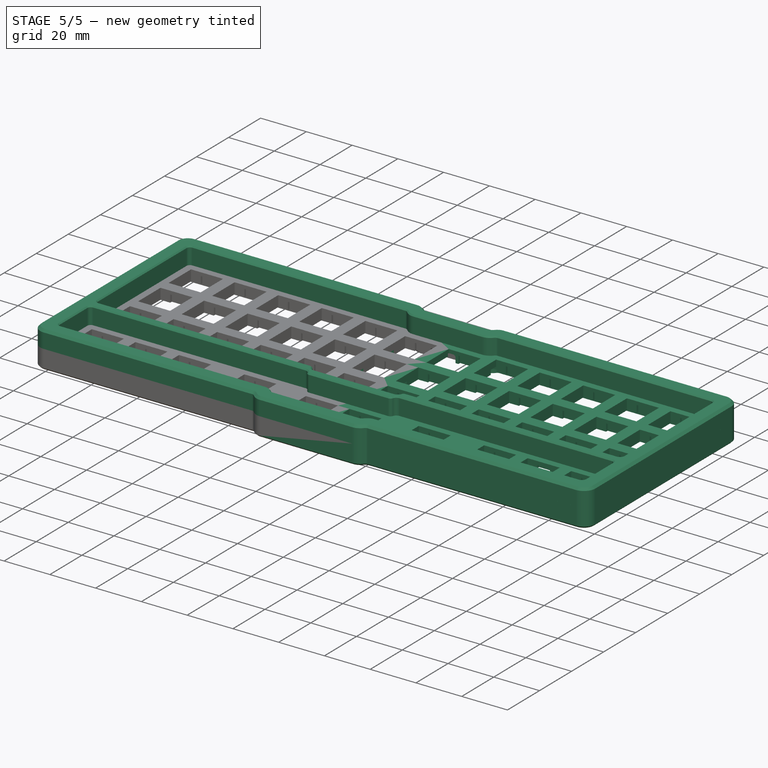
[diagram: stage 5 of 5 — iso view after this stage's code; geometry added in this stage tinted green]
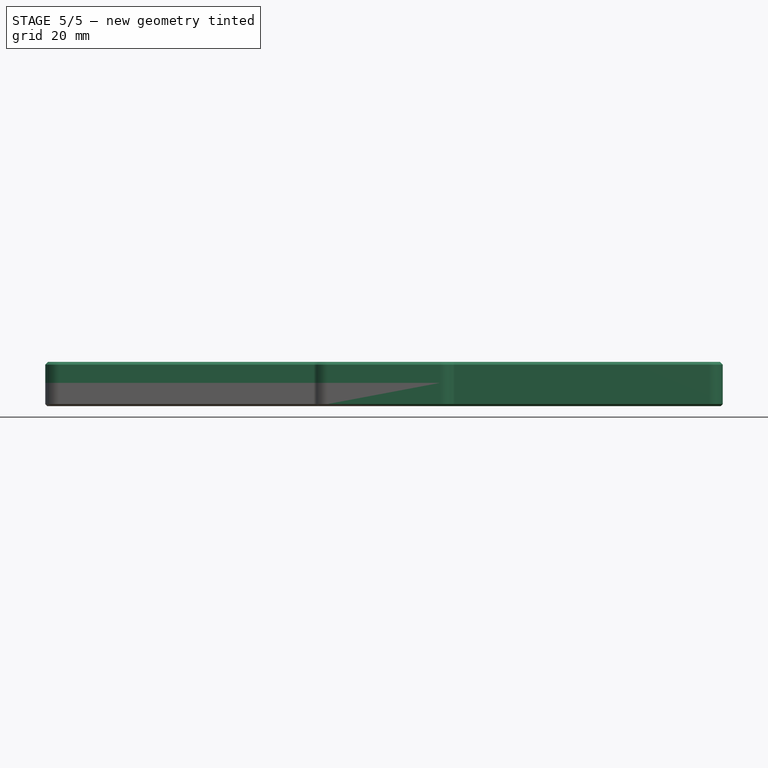
[diagram: stage 5 of 5 — front view after this stage's code; geometry added in this stage tinted green]
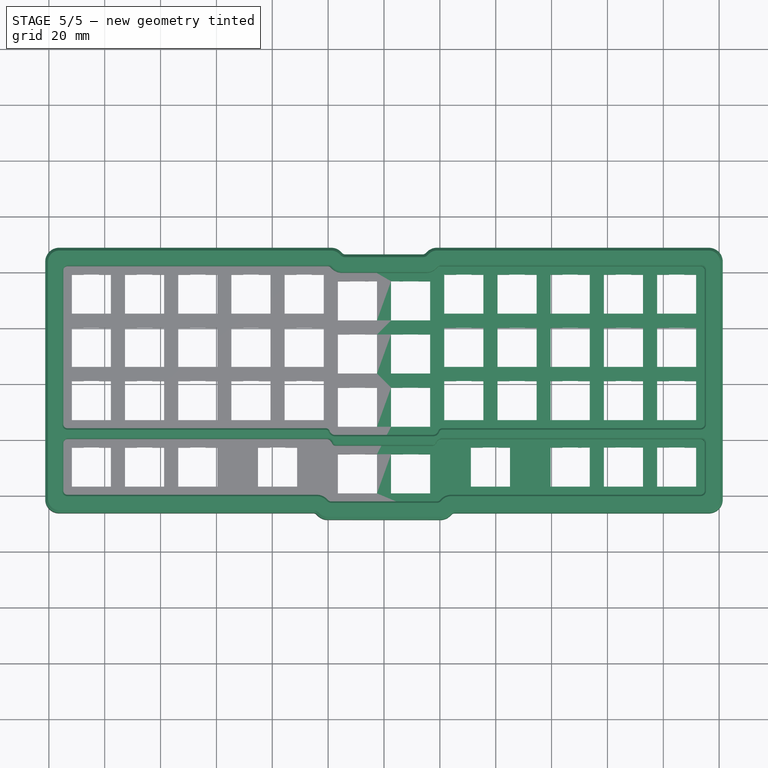
[diagram: stage 5 of 5 — top view after this stage's code; geometry added in this stage tinted green]
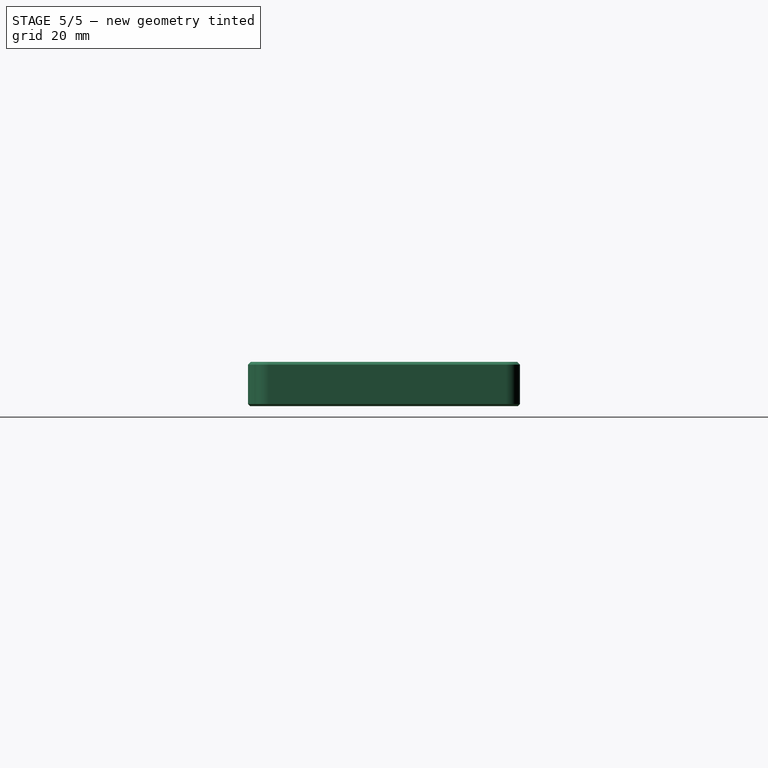
[diagram: stage 5 of 5 — right view after this stage's code; geometry added in this stage tinted green]
FEATURE [PartDesign::Body] Body008
  Group = -> [Sketch060,Pad022,Fillet010,Fillet011,Fillet012,Chamfer007,Chamfer008,Sketch075,Pocket027]
  Origin = -> Origin814
  Tip = -> Pocket027
FEATURE [Part::Mirroring] Part__Mirroring  label="Body008 (Mirror #3)"
  Base = (0,0,0)
  Normal = (1,0,0)
  Source = -> Body008
FEATURE [Part::MultiFuse] Fusion  label="Top"
  Material = -> Material002
  Refine = true
  Shapes = -> [Part__Mirroring,Body008]
FEATURE [PartDesign::Body] Body007  label="plate"
  Group = -> [Sketch036,Pad015,Sketch037,Pocket022,Sketch038,Pocket023,Sketch039,Pocket024,Sketch,Pocket,Sketch062,Pad,Sketch073,Pocket025,Sketch074,Pocket026,ShapeBinder001,Sketch076,Pocket028,Sketch078,Pad024,Sketch079,Pocket029,Sketch077,Pocket030,Fillet,Fillet013,Fillet014,Chamfer,Sketch080,Pocket031]
  Origin = -> Origin209
  Tip = -> Pocket031
FEATURE [Part::Mirroring] Part__Mirroring002  label="plate (Mirror #3)"
  Base = (0,0,0)
  Normal = (1,0,0)
  Source = -> Body007
FEATURE [Part::MultiFuse] Fusion002  label="bottom"
  Material = -> Material001
  Refine = true
  Shapes = -> [Part__Mirroring002,Body007]
FEATURE [PartDesign::FeatureBase] BaseFeature
  BaseFeature = -> Fusion002
FEATURE [Sketcher::SketchObject] Sketch081
  ExternalGeometry = -> [BaseFeature]
  FullyConstrained = true
  MapMode = 5
  Placement = pos=(0,0,-4.75) rot=(1,0,0;3.14159rad)
  Support = -> [BaseFeature]
  sketch-geometry (42):
    g0: LineSegment StartX=-97.775 StartY=36.7406 StartZ=0 EndX=97.775 EndY=36.7406 EndZ=0
    g1: LineSegment StartX=97.775 StartY=36.7406 StartZ=0 EndX=97.775 EndY=32.2406 EndZ=0
    g2: LineSegment StartX=97.775 StartY=32.2406 StartZ=0 EndX=-97.775 EndY=32.2406 EndZ=0
    g3: LineSegment StartX=-97.775 StartY=32.2406 StartZ=0 EndX=-97.775 EndY=36.7406 EndZ=0
    g4: LineSegment StartX=-97.775 StartY=12.9281 StartZ=0 EndX=59.675 EndY=12.9281 EndZ=0
    g5: LineSegment StartX=59.675 StartY=12.9281 StartZ=0 EndX=59.675 EndY=8.42813 EndZ=0
    g6: LineSegment StartX=59.675 StartY=8.42813 StartZ=0 EndX=-97.775 EndY=8.42813 EndZ=0
    g7: LineSegment StartX=-97.775 StartY=8.42813 StartZ=0 EndX=-97.775 EndY=12.9281 EndZ=0
    g8: LineSegment StartX=73.675 StartY=22.7406 StartZ=0 EndX=73.675 EndY=8.42813 EndZ=0
    g9: LineSegment StartX=73.675 StartY=8.42813 StartZ=0 EndX=78.725 EndY=8.42813 EndZ=0
    g10: LineSegment StartX=78.725 StartY=8.42813 StartZ=0 EndX=78.725 EndY=12.9281 EndZ=0
    g11: LineSegment StartX=106.125 StartY=12.9281 StartZ=0 EndX=106.125 EndY=22.7406 EndZ=0
    g12: LineSegment StartX=106.125 StartY=22.7406 StartZ=0 EndX=73.675 EndY=22.7406 EndZ=0
    g13: LineSegment StartX=-97.775 StartY=-6.12188 StartZ=0 EndX=97.775 EndY=-6.12188 EndZ=0
    g14: LineSegment StartX=97.775 StartY=-6.12188 StartZ=0 EndX=97.775 EndY=-10.6219 EndZ=0
    g15: LineSegment StartX=97.775 StartY=-10.6219 StartZ=0 EndX=-97.775 EndY=-10.6219 EndZ=0
    g16: LineSegment StartX=-97.775 StartY=-10.6219 StartZ=0 EndX=-97.775 EndY=-6.12188 EndZ=0
    g17: LineSegment StartX=-97.775 StartY=-25.1719 StartZ=0 EndX=-16.525 EndY=-25.1719 EndZ=0
    g18: LineSegment StartX=-16.525 StartY=-25.1719 StartZ=0 EndX=-16.525 EndY=-29.6719 EndZ=0
    g19: LineSegment StartX=-16.525 StartY=-29.6719 StartZ=0 EndX=-97.775 EndY=-29.6719 EndZ=0
    g20: LineSegment StartX=-97.775 StartY=-29.6719 StartZ=0 EndX=-97.775 EndY=-25.1719 EndZ=0
    g21: LineSegment StartX=16.525 StartY=-25.1719 StartZ=0 EndX=97.775 EndY=-25.1719 EndZ=0
    g22: LineSegment StartX=97.775 StartY=-25.1719 StartZ=0 EndX=97.775 EndY=-29.6719 EndZ=0
    g23: LineSegment StartX=97.775 StartY=-29.6719 StartZ=0 EndX=16.525 EndY=-29.6719 EndZ=0
    g24: LineSegment StartX=16.525 StartY=-29.6719 StartZ=0 EndX=16.525 EndY=-25.1719 EndZ=0
    g25: LineSegment StartX=103.425 StartY=-1.07187 StartZ=0 EndX=106.125 EndY=-1.07187 EndZ=0
    g26: LineSegment StartX=106.125 StartY=-1.07187 StartZ=0 EndX=106.125 EndY=-25.1719 EndZ=0
    g27: LineSegment StartX=106.125 StartY=-25.1719 StartZ=0 EndX=103.425 EndY=-25.1719 EndZ=0
    g28: LineSegment StartX=103.425 StartY=-25.1719 StartZ=0 EndX=103.425 EndY=-1.07187 EndZ=0
    g29: LineSegment StartX=-2.525 StartY=-24.9906 StartZ=0 EndX=2.525 EndY=-24.9906 EndZ=0
    g30: LineSegment StartX=2.525 StartY=-24.9906 StartZ=0 EndX=2.525 EndY=-36.2906 EndZ=0
    g31: LineSegment StartX=2.525 StartY=-36.2906 StartZ=0 EndX=-2.525 EndY=-36.2906 EndZ=0
    g32: LineSegment StartX=-2.525 StartY=-36.2906 StartZ=0 EndX=-2.525 EndY=-24.9906 EndZ=0
    g33: LineSegment StartX=16.525 StartY=-35.7906 StartZ=0 EndX=21.825 EndY=-35.7906 EndZ=0
    g34: LineSegment StartX=21.825 StartY=-35.7906 StartZ=0 EndX=21.825 EndY=-40.5906 EndZ=0
    g35: LineSegment StartX=21.825 StartY=-40.5906 StartZ=0 EndX=16.525 EndY=-40.5906 EndZ=0
    g36: LineSegment StartX=16.525 StartY=-40.5906 StartZ=0 EndX=16.525 EndY=-35.7906 EndZ=0
    g37: LineSegment StartX=78.725 StartY=12.9281 StartZ=0 EndX=92.725 EndY=12.9281 EndZ=0
    g38: LineSegment StartX=92.725 StartY=12.9281 StartZ=0 EndX=92.725 EndY=5.92813 EndZ=0
    g39: LineSegment StartX=92.725 StartY=5.92813 StartZ=0 EndX=97.775 EndY=5.92813 EndZ=0
    g40: LineSegment StartX=97.775 StartY=5.92813 StartZ=0 EndX=97.775 EndY=12.9281 EndZ=0
    g41: LineSegment StartX=97.775 StartY=12.9281 StartZ=0 EndX=106.125 EndY=12.9281 EndZ=0
  constraints (113):
    c: Coincident(g0,g1)
    c: Coincident(g1,g2)
    c: Coincident(g2,g3)
    c: Coincident(g3,g0)
    c: Horizontal(g2)
    c: Vertical(g1)
    c: Vertical(g3)
    c: Coincident(g4,g5)
    c: Coincident(g5,g6)
    c: Coincident(g6,g7)
    c: Coincident(g7,g4)
    c: Horizontal(g6)
    c: Vertical(g5)
    c: Vertical(g7)
    c: Vertical(g8)
    c: Coincident(g8,g9)
    c: Horizontal(g9)
    c: Coincident(g9,g10)
    c: Vertical(g10)
    c: Vertical(g11)
    c: Coincident(g11,g12)
    c: Coincident(g12,g8)
    c: Horizontal(g12)
    c: Coincident(g13,g14)
    c: Coincident(g14,g15)
    c: Coincident(g15,g16)
    c: Coincident(g16,g13)
    c: Horizontal(g15)
    c: Vertical(g14)
    c: Vertical(g16)
    c: Coincident(g17,g18)
    c: Coincident(g18,g19)
    c: Coincident(g19,g20)
    c: Coincident(g20,g17)
    c: Horizontal(g17)
    c: Horizontal(g19)
    c: Vertical(g18)
    c: Vertical(g20)
    c: Coincident(g21,g22)
    c: Coincident(g22,g23)
    c: Coincident(g23,g24)
    c: Coincident(g24,g21)
    c: Horizontal(g21)
    c: Horizontal(g23)
    c: Vertical(g22)
    c: Vertical(g24)
    c: Coincident(g25,g26)
    c: Coincident(g26,g27)
    c: Coincident(g27,g28)
    c: Coincident(g28,g25)
    c: Horizontal(g25)
    c: Horizontal(g27)
    c: Vertical(g26)
    c: Vertical(g28)
    c: Coincident(g29,g30)
    c: Coincident(g30,g31)
    c: Coincident(g31,g32)
    c: Coincident(g32,g29)
    c: Horizontal(g29)
    c: Horizontal(g31)
    c: Vertical(g30)
    c: Vertical(g32)
    c: Coincident(g33,g34)
    c: Coincident(g34,g35)
    c: Coincident(g35,g36)
    c: Coincident(g36,g33)
    c: Horizontal(g33)
    c: Horizontal(g35)
    c: Vertical(g34)
    c: Vertical(g36)
    c: Coincident(g0,g-3)
    c: DistanceY(g3,g3) = 4.5
    c: Coincident(g0,g-4)
    c: Coincident(g17,g-12)
    c: Coincident(g-7,g13)
    c: Coincident(g-6,g4)
    c: Coincident(g21,g-9)
    c: Coincident(g4,g-5)
    c: Equal(g3,g7)
    c: Equal(g7,g16)
    c: Equal(g16,g20)
    c: PointOnObject(g17,g-11)
    c: PointOnObject(g21,g-10)
    c: Equal(g24,g18)
    c: Coincident(g13,g-8)
    c: Horizontal(g26,g-14)
    c: Horizontal(g25,g-13)
    c: DistanceX(g25,g-13) = 1.4
    c: DistanceX(g-15,g25) = 1.4
    c: Horizontal(g8,g5)
    c: Coincident(g-16,g8)
    c: Coincident(g10,g-17)
    c: DistanceX(g11,g-18) = 1.4
    c: Coincident(g10,g37)
    c: Coincident(g37,g38)
    c: Vertical(g38)
    c: Coincident(g38,g39)
    c: Horizontal(g39)
    c: Coincident(g39,g40)
    c: Coincident(g40,g-19)
    c: Coincident(g40,g41)
    c: Coincident(g41,g11)
    c: Horizontal(g41)
    c: Vertical(g40)
    c: Coincident(g37,g-20)
    c: DistanceY(g38,g38) = 7
    c: Vertical(g29,g-21)
    c: DistanceY(g29,g-22) = 2.2
    c: Coincident(g30,g-22)
    c: PointOnObject(g33,g-10)
    c: DistanceY(g-10,g33) = 1
    c: DistanceX(g33,g33) = 5.3
    c: DistanceY(g36,g36) = 4.8
FEATURE [PartDesign::Pocket] Pocket032
  BaseFeature = -> BaseFeature
  Direction = (0,0,1)
  Length = 2
  Length2 = 5
  Profile = -> Sketch081
  ReferenceAxis = -> Sketch081 [N_Axis]
  Type = 0
FEATURE [PartDesign::Body] Body009  label="Bottom"
  BaseFeature = -> Fusion002
  Group = -> [BaseFeature,Sketch081,Pocket032]
  Origin = -> Origin981
  Tip = -> Pocket032
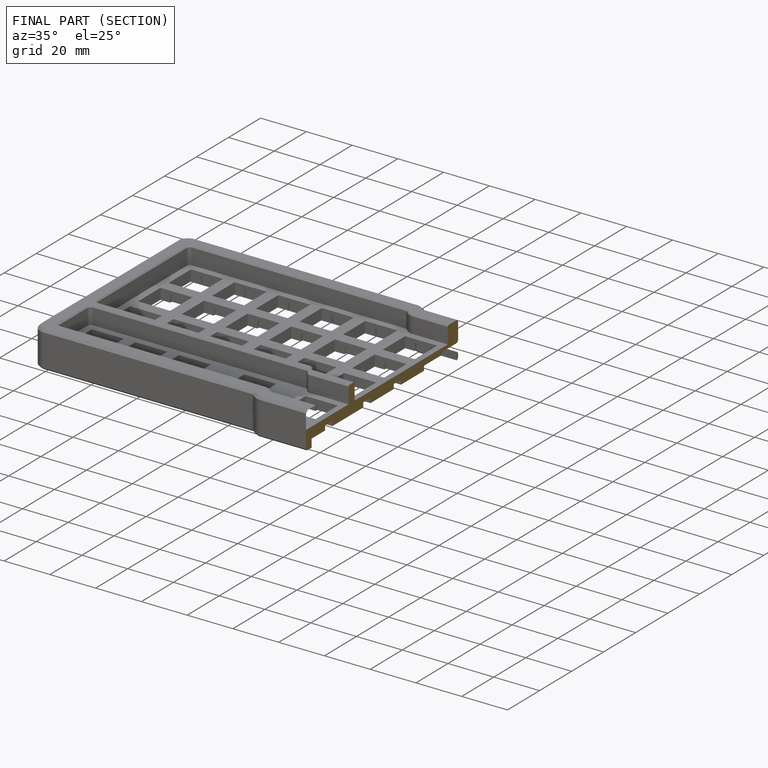
[diagram: finished part — half-section view (interior)]
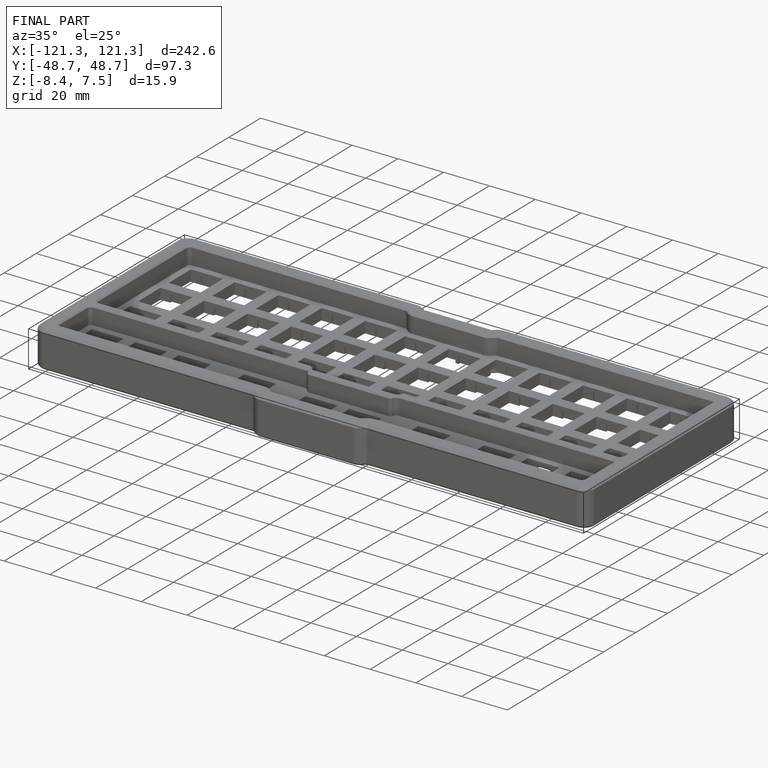
[diagram: finished part — iso view with bounding-box wireframe]
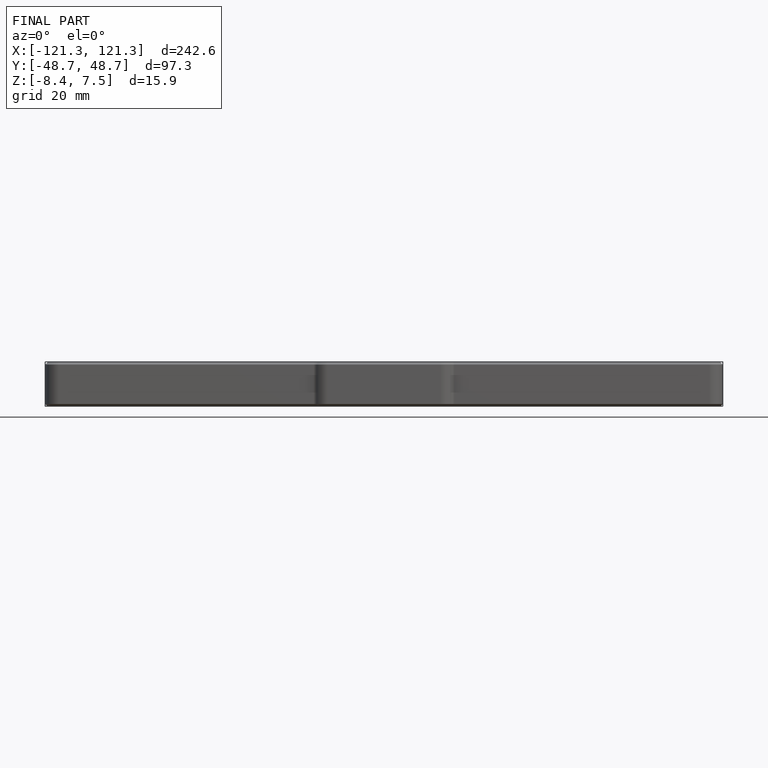
[diagram: finished part — front view with bounding-box wireframe]
